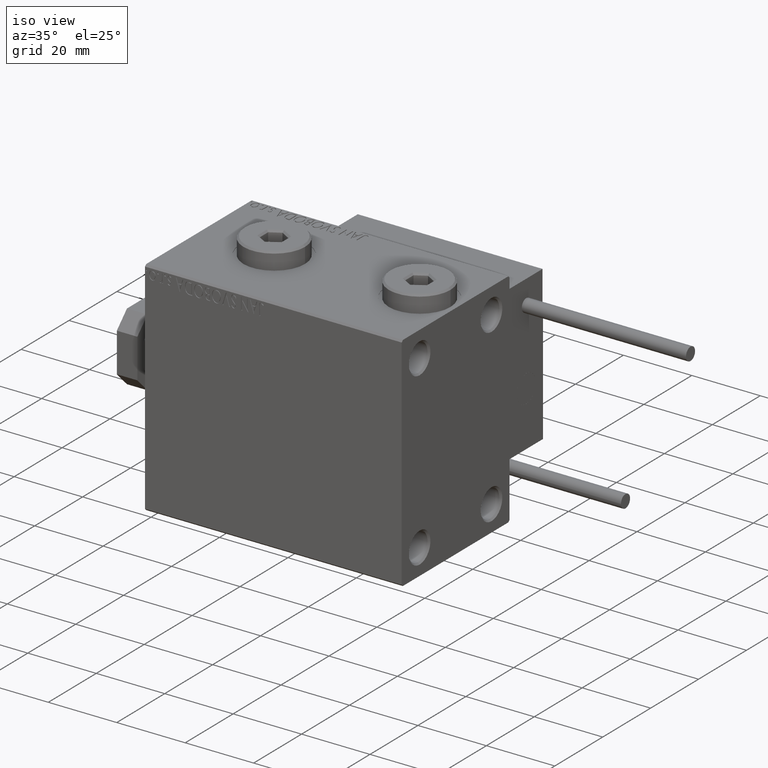
[diagram: clean part render]
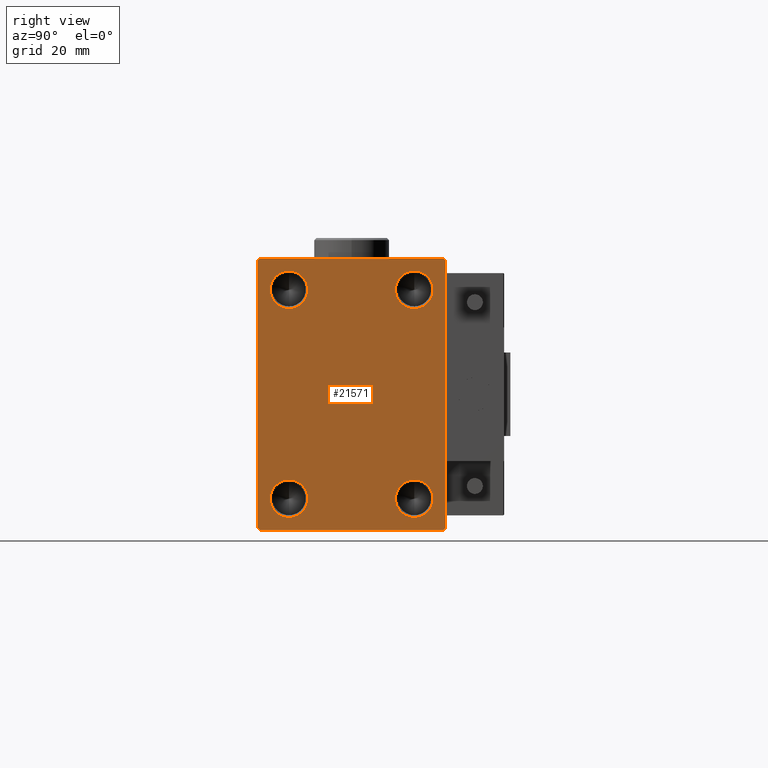
[diagram: tour spotlight — one face highlighted and labeled with its STEP entity id]
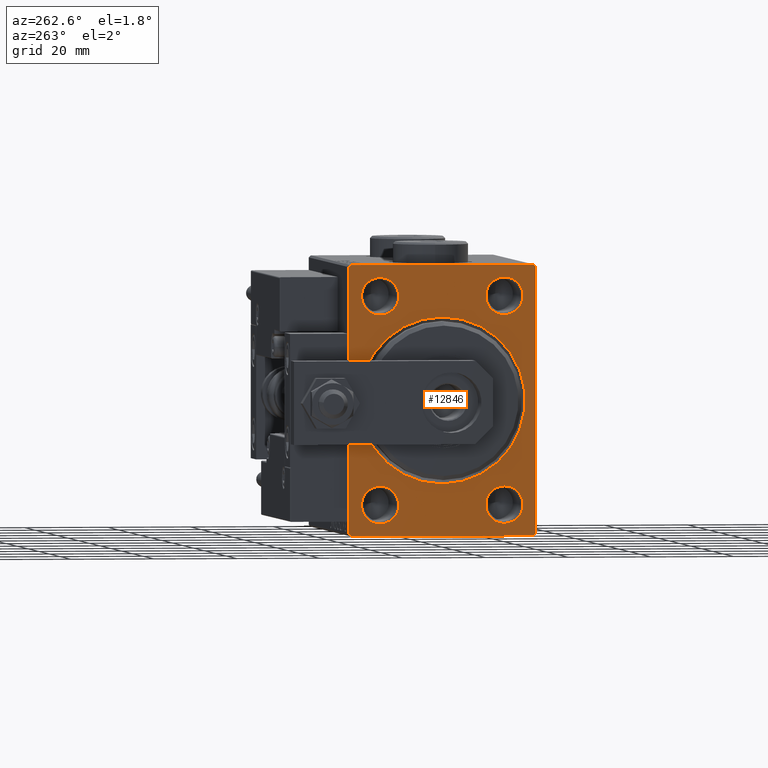
[diagram: tour spotlight — one face highlighted and labeled with its STEP entity id]
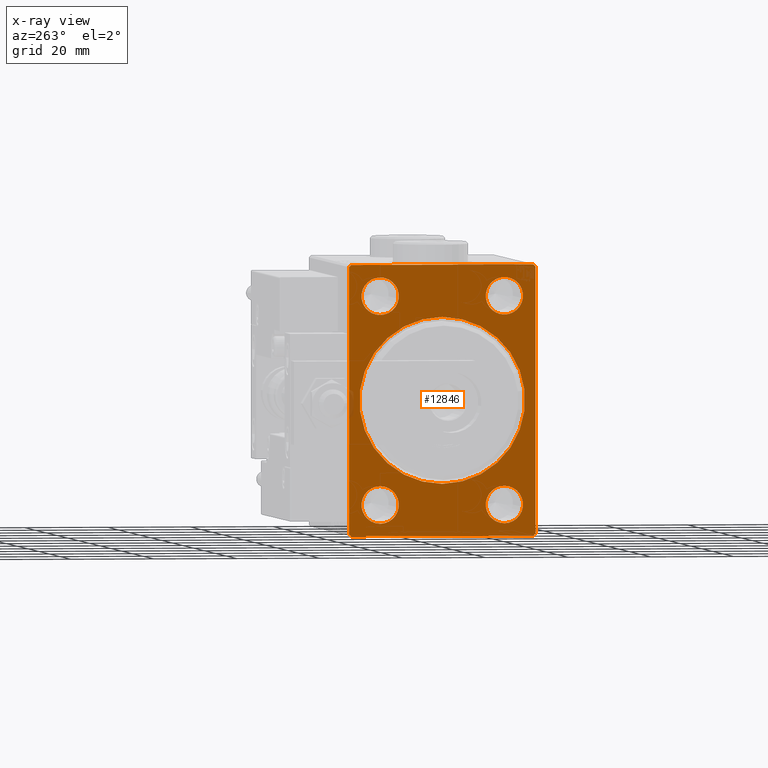
[diagram: x-ray of the same camera — body ghosted, this tour face saturated]
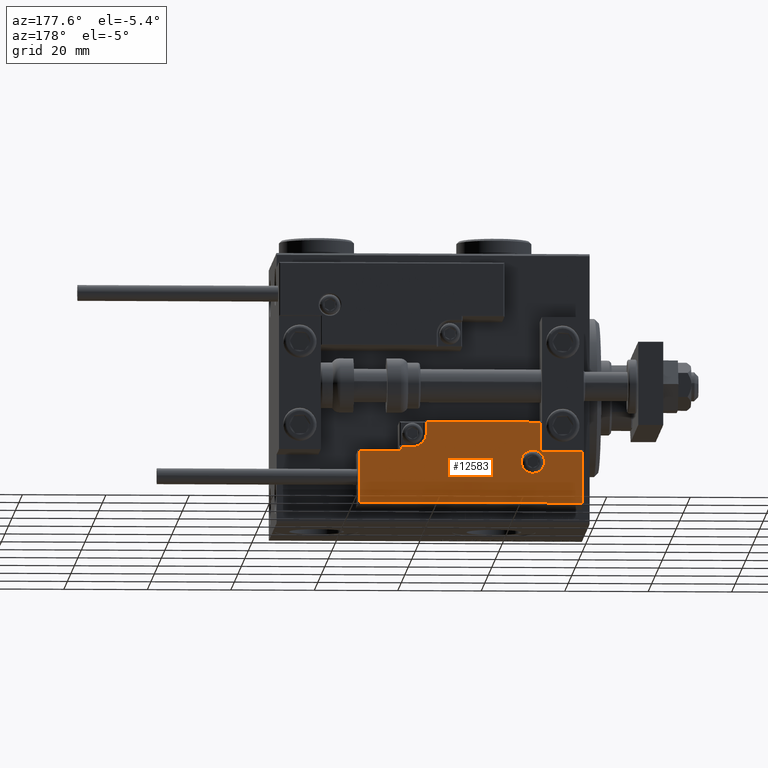
[diagram: tour spotlight — one face highlighted and labeled with its STEP entity id]
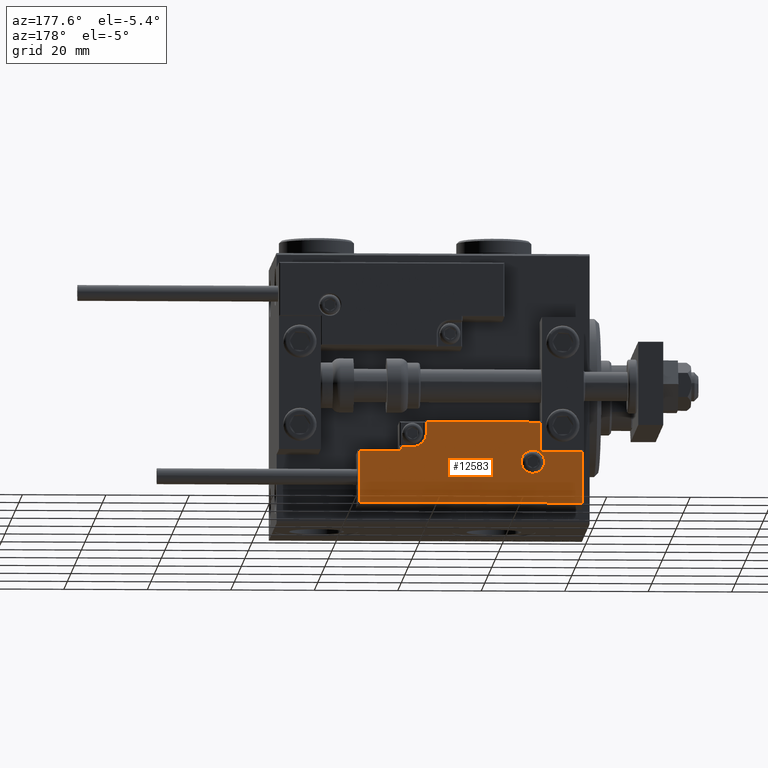
[diagram: tour spotlight — one face highlighted and labeled with its STEP entity id]
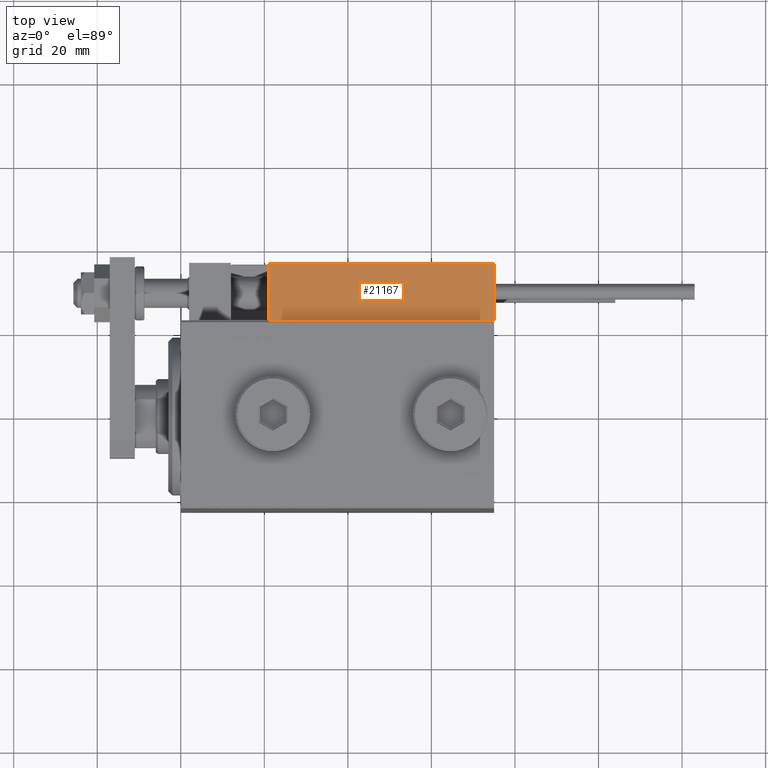
[diagram: tour spotlight — one face highlighted and labeled with its STEP entity id]
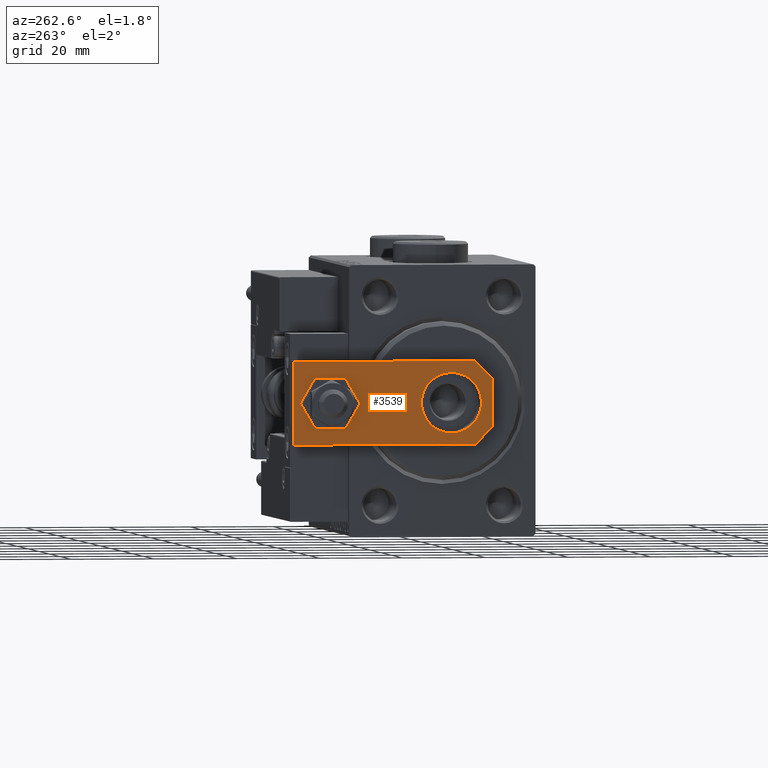
[diagram: tour spotlight — one face highlighted and labeled with its STEP entity id]
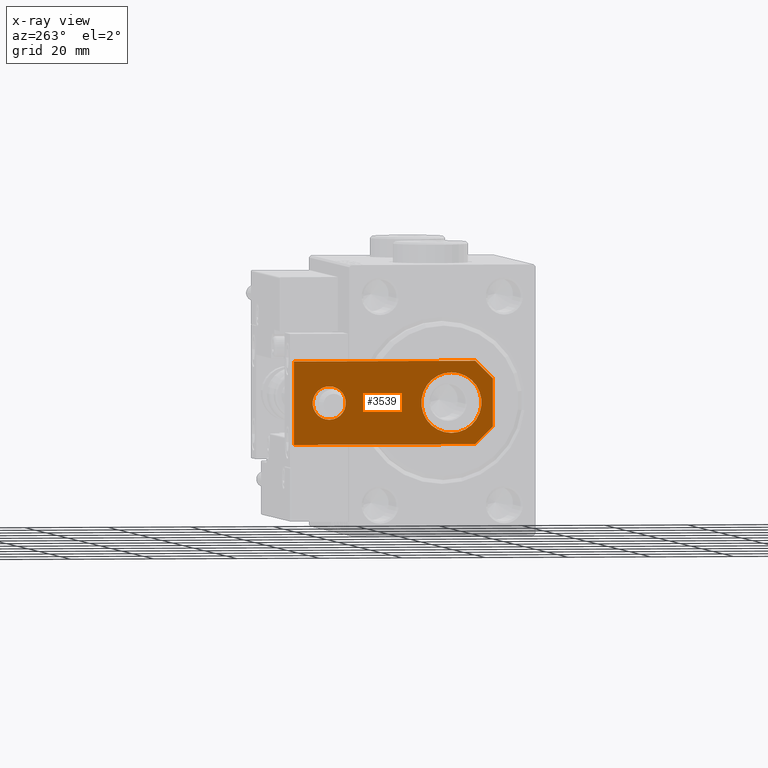
[diagram: x-ray of the same camera — body ghosted, this tour face saturated]
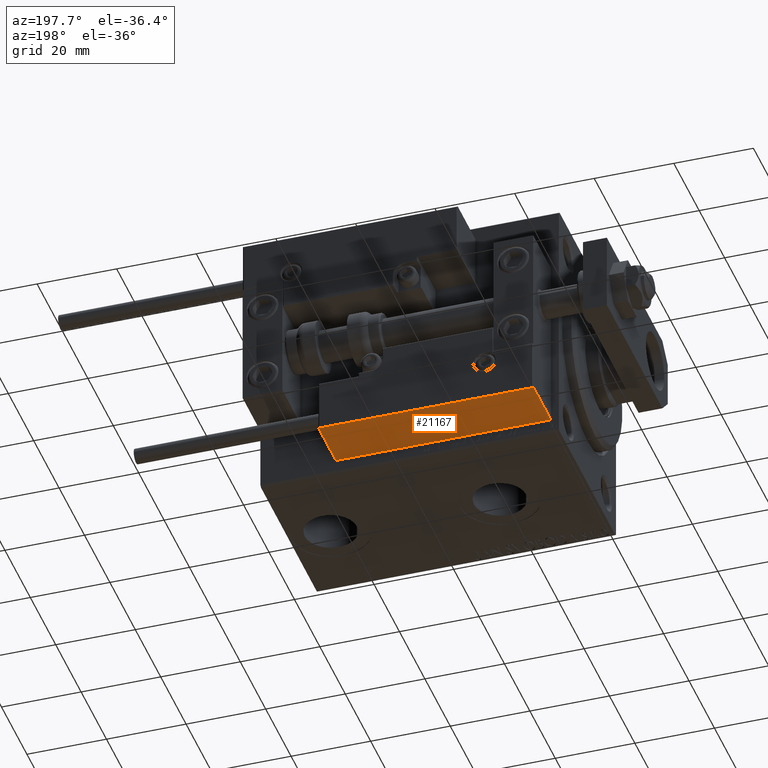
[diagram: tour spotlight — one face highlighted and labeled with its STEP entity id]
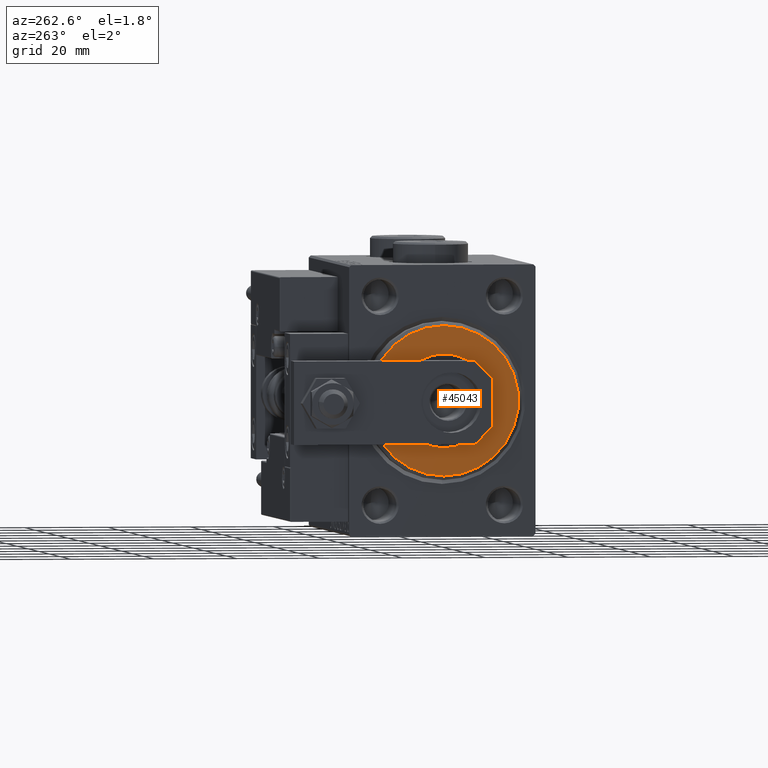
[diagram: tour spotlight — one face highlighted and labeled with its STEP entity id]
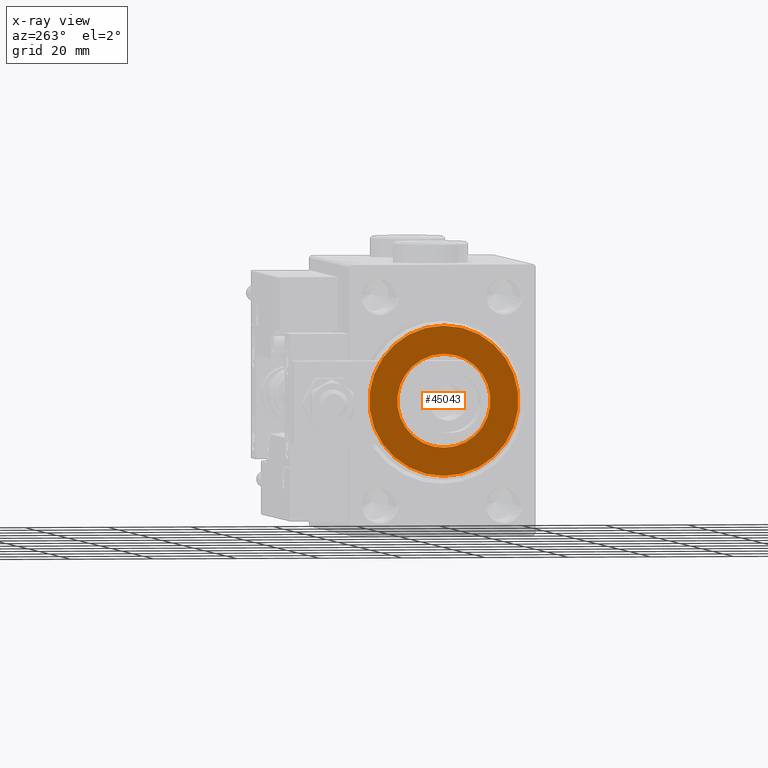
[diagram: x-ray of the same camera — body ghosted, this tour face saturated]
A machine part: a face-by-face anatomy tour. The part has 1372 B-rep faces; the first image is the clean iso view, then the 8 largest visible faces are spotlighted one at a time (largest first), each with its STEP entity span.

Face 1 — right view, entity #21571. In plain terms, the highlighted planar face has unit normal (1, 0, 0).
Definition (entity closure, byte-faithful):
#235 = DIRECTION ( 'NONE',  ( 0.000000000000000000, 0.000000000000000000, -1.000000000000000000 ) ) ;
#591 = CIRCLE ( 'NONE', #38806, 4.500000000000017764 ) ;
#948 = ORIENTED_EDGE ( 'NONE', *, *, #42275, .F. ) ;
#980 = VECTOR ( 'NONE', #40868, 1000.000000000000000 ) ;
#1086 = CIRCLE ( 'NONE', #41021, 4.500000000000017764 ) ;
#1194 = VECTOR ( 'NONE', #52576, 1000.000000000000114 ) ;
#1711 = EDGE_CURVE ( 'NONE', #22829, #30299, #32560, .T. ) ;
#1749 = DIRECTION ( 'NONE',  ( 0.000000000000000000, 0.000000000000000000, -1.000000000000000000 ) ) ;
#2175 = DIRECTION ( 'NONE',  ( 0.000000000000000000, 0.000000000000000000, -1.000000000000000000 ) ) ;
#2301 = CARTESIAN_POINT ( 'NONE',  ( 75.00000000000000000, 15.00000000000000178, 20.49999999999998579 ) ) ;
#2505 = CARTESIAN_POINT ( 'NONE',  ( 75.00000000000000000, 15.00000000000000178, -20.49999999999998579 ) ) ;
#4258 = EDGE_CURVE ( 'NONE', #39478, #29969, #32644, .T. ) ;
#4396 = AXIS2_PLACEMENT_3D ( 'NONE', #9980, #50662, #1749 ) ;
#5340 = LINE ( 'NONE', #20512, #52343 ) ;
#5614 = LINE ( 'NONE', #21838, #31277 ) ;
#5934 = EDGE_CURVE ( 'NONE', #45611, #10825, #29326, .T. ) ;
#6321 = CARTESIAN_POINT ( 'NONE',  ( 75.00000000000000000, 0.000000000000000000, 0.000000000000000000 ) ) ;
#6396 = VERTEX_POINT ( 'NONE', #31877 ) ;
#6636 = CARTESIAN_POINT ( 'NONE',  ( 75.00000000000000000, -27.25000000000015632, -27.24999999999977973 ) ) ;
#6673 = CARTESIAN_POINT ( 'NONE',  ( 75.00000000000000000, 15.00000000000000178, -25.00000000000000000 ) ) ;
#7105 = DIRECTION ( 'NONE',  ( 1.000000000000000000, 0.000000000000000000, 0.000000000000000000 ) ) ;
#7155 = ORIENTED_EDGE ( 'NONE', *, *, #27210, .T. ) ;
#7164 = EDGE_LOOP ( 'NONE', ( #7155, #51353, #17858, #47097, #19635, #36960, #49204, #32791 ) ) ;
#7833 = AXIS2_PLACEMENT_3D ( 'NONE', #10870, #26584, #51297 ) ;
#8231 = AXIS2_PLACEMENT_3D ( 'NONE', #6321, #7105, #51517 ) ;
#9609 = AXIS2_PLACEMENT_3D ( 'NONE', #28692, #16431, #235 ) ;
#9732 = DIRECTION ( 'NONE',  ( -0.000000000000000000, 0.7071067811865378028, 0.7071067811865573427 ) ) ;
#9777 = FACE_BOUND ( 'NONE', #49980, .T. ) ;
#9980 = CARTESIAN_POINT ( 'NONE',  ( 75.00000000000000000, -15.00000000000000000, -25.00000000000000000 ) ) ;
#10825 = VERTEX_POINT ( 'NONE', #39712 ) ;
#10870 = CARTESIAN_POINT ( 'NONE',  ( 75.00000000000000000, 15.00000000000000178, 25.00000000000000000 ) ) ;
#11027 = CARTESIAN_POINT ( 'NONE',  ( 75.00000000000000000, -22.49999999999999289, 32.49999999999998579 ) ) ;
#12657 = LINE ( 'NONE', #49110, #980 ) ;
#14019 = FACE_OUTER_BOUND ( 'NONE', #7164, .T. ) ;
#14135 = CARTESIAN_POINT ( 'NONE',  ( 75.00000000000000000, -15.00000000000000000, 25.00000000000000000 ) ) ;
#14439 = CARTESIAN_POINT ( 'NONE',  ( 75.00000000000000000, -22.49999999999999289, 31.99999999999998579 ) ) ;
#14631 = EDGE_CURVE ( 'NONE', #26017, #6396, #39368, .T. ) ;
#16431 = DIRECTION ( 'NONE',  ( 1.000000000000000000, -0.000000000000000000, -0.000000000000000000 ) ) ;
#17416 = VERTEX_POINT ( 'NONE', #48265 ) ;
#17858 = ORIENTED_EDGE ( 'NONE', *, *, #34758, .T. ) ;
#18568 = CARTESIAN_POINT ( 'NONE',  ( 75.00000000000000000, -22.49999999999999289, -32.50000000000000711 ) ) ;
#19280 = VECTOR ( 'NONE', #9732, 1000.000000000000000 ) ;
#19635 = ORIENTED_EDGE ( 'NONE', *, *, #25814, .T. ) ;
#20512 = CARTESIAN_POINT ( 'NONE',  ( 75.00000000000000000, 22.50000000000000711, -32.50000000000000711 ) ) ;
#20517 = DIRECTION ( 'NONE',  ( 0.000000000000000000, 0.000000000000000000, -1.000000000000000000 ) ) ;
#20783 = DIRECTION ( 'NONE',  ( 1.000000000000000000, -0.000000000000000000, -0.000000000000000000 ) ) ;
#20832 = VERTEX_POINT ( 'NONE', #31439 ) ;
#21203 = AXIS2_PLACEMENT_3D ( 'NONE', #14135, #30379, #46582 ) ;
#21571 = ADVANCED_FACE ( 'NONE', ( #9777, #30522, #22018, #34252, #14019 ), #42745, .T. ) ;
#21838 = CARTESIAN_POINT ( 'NONE',  ( 75.00000000000000000, 22.50000000000000000, 32.49999999999999289 ) ) ;
#21861 = EDGE_LOOP ( 'NONE', ( #35383, #48545 ) ) ;
#21894 = DIRECTION ( 'NONE',  ( 0.000000000000000000, 0.000000000000000000, -1.000000000000000000 ) ) ;
#22018 = FACE_BOUND ( 'NONE', #51833, .T. ) ;
#22118 = VECTOR ( 'NONE', #22337, 1000.000000000000000 ) ;
#22337 = DIRECTION ( 'NONE',  ( -0.000000000000000000, 0.7071067811865426878, -0.7071067811865524577 ) ) ;
#22639 = DIRECTION ( 'NONE',  ( 1.000000000000000000, -0.000000000000000000, -0.000000000000000000 ) ) ;
#22829 = VERTEX_POINT ( 'NONE', #42911 ) ;
#24520 = CARTESIAN_POINT ( 'NONE',  ( 75.00000000000000000, -15.00000000000000000, -25.00000000000000000 ) ) ;
#24761 = VERTEX_POINT ( 'NONE', #36695 ) ;
#24839 = CARTESIAN_POINT ( 'NONE',  ( 75.00000000000000000, 15.00000000000000178, -25.00000000000000000 ) ) ;
#24845 = EDGE_CURVE ( 'NONE', #51808, #26543, #25698, .T. ) ;
#25071 = AXIS2_PLACEMENT_3D ( 'NONE', #6673, #22639, #2175 ) ;
#25334 = CARTESIAN_POINT ( 'NONE',  ( 75.00000000000000000, -15.00000000000000000, 20.50000000000001776 ) ) ;
#25496 = CARTESIAN_POINT ( 'NONE',  ( 75.00000000000000000, -22.00000000000000711, -32.50000000000000711 ) ) ;
#25698 = LINE ( 'NONE', #41925, #19280 ) ;
#25814 = EDGE_CURVE ( 'NONE', #27689, #51808, #42770, .T. ) ;
#25929 = VERTEX_POINT ( 'NONE', #2301 ) ;
#26017 = VERTEX_POINT ( 'NONE', #43242 ) ;
#26524 = CIRCLE ( 'NONE', #7833, 4.500000000000017764 ) ;
#26543 = VERTEX_POINT ( 'NONE', #47820 ) ;
#26584 = DIRECTION ( 'NONE',  ( 1.000000000000000000, -0.000000000000000000, -0.000000000000000000 ) ) ;
#27210 = EDGE_CURVE ( 'NONE', #35203, #39478, #5614, .T. ) ;
#27689 = VERTEX_POINT ( 'NONE', #25496 ) ;
#27841 = DIRECTION ( 'NONE',  ( 0.000000000000000000, 0.000000000000000000, -1.000000000000000000 ) ) ;
#28692 = CARTESIAN_POINT ( 'NONE',  ( 75.00000000000000000, -15.00000000000000000, 25.00000000000000000 ) ) ;
#28754 = ORIENTED_EDGE ( 'NONE', *, *, #1711, .F. ) ;
#29326 = CIRCLE ( 'NONE', #25071, 4.500000000000017764 ) ;
#29487 = VECTOR ( 'NONE', #34800, 1000.000000000000000 ) ;
#29825 = VECTOR ( 'NONE', #43487, 1000.000000000000000 ) ;
#29969 = VERTEX_POINT ( 'NONE', #14439 ) ;
#30299 = VERTEX_POINT ( 'NONE', #25334 ) ;
#30379 = DIRECTION ( 'NONE',  ( 1.000000000000000000, -0.000000000000000000, -0.000000000000000000 ) ) ;
#30522 = FACE_BOUND ( 'NONE', #36201, .T. ) ;
#30915 = CARTESIAN_POINT ( 'NONE',  ( 75.00000000000000000, 22.00000000000000711, -32.50000000000000711 ) ) ;
#31148 = EDGE_CURVE ( 'NONE', #30299, #22829, #37345, .T. ) ;
#31277 = VECTOR ( 'NONE', #34068, 1000.000000000000000 ) ;
#31439 = CARTESIAN_POINT ( 'NONE',  ( 75.00000000000000000, 22.50000000000000000, 32.00000000000000711 ) ) ;
#31877 = CARTESIAN_POINT ( 'NONE',  ( 75.00000000000000000, -15.00000000000000000, -29.49999999999998579 ) ) ;
#32560 = CIRCLE ( 'NONE', #9609, 4.499999999999990230 ) ;
#32644 = LINE ( 'NONE', #36376, #1194 ) ;
#32791 = ORIENTED_EDGE ( 'NONE', *, *, #34625, .T. ) ;
#34068 = DIRECTION ( 'NONE',  ( 0.000000000000000000, -1.000000000000000000, -1.541976423090495633E-16 ) ) ;
#34116 = CIRCLE ( 'NONE', #4396, 4.499999999999990230 ) ;
#34252 = FACE_BOUND ( 'NONE', #21861, .T. ) ;
#34572 = LINE ( 'NONE', #6636, #22118 ) ;
#34625 = EDGE_CURVE ( 'NONE', #20832, #35203, #12657, .T. ) ;
#34758 = EDGE_CURVE ( 'NONE', #29969, #17416, #47468, .T. ) ;
#34800 = DIRECTION ( 'NONE',  ( 0.000000000000000000, 1.000000000000000000, 0.000000000000000000 ) ) ;
#34805 = CARTESIAN_POINT ( 'NONE',  ( 75.00000000000000000, -21.99999999999997868, 32.49999999999998579 ) ) ;
#34903 = ORIENTED_EDGE ( 'NONE', *, *, #14631, .F. ) ;
#35203 = VERTEX_POINT ( 'NONE', #45741 ) ;
#35383 = ORIENTED_EDGE ( 'NONE', *, *, #5934, .F. ) ;
#35784 = EDGE_CURVE ( 'NONE', #6396, #26017, #34116, .T. ) ;
#35825 = DIRECTION ( 'NONE',  ( 1.000000000000000000, -0.000000000000000000, -0.000000000000000000 ) ) ;
#36201 = EDGE_LOOP ( 'NONE', ( #28754, #43398 ) ) ;
#36376 = CARTESIAN_POINT ( 'NONE',  ( 75.00000000000000000, -27.24999999999998934, 27.24999999999998934 ) ) ;
#36695 = CARTESIAN_POINT ( 'NONE',  ( 75.00000000000000000, 15.00000000000000178, 29.50000000000001421 ) ) ;
#36960 = ORIENTED_EDGE ( 'NONE', *, *, #24845, .T. ) ;
#37345 = CIRCLE ( 'NONE', #21203, 4.499999999999990230 ) ;
#38806 = AXIS2_PLACEMENT_3D ( 'NONE', #24839, #41578, #21894 ) ;
#39368 = CIRCLE ( 'NONE', #47017, 4.499999999999990230 ) ;
#39478 = VERTEX_POINT ( 'NONE', #34805 ) ;
#39712 = CARTESIAN_POINT ( 'NONE',  ( 75.00000000000000000, 15.00000000000000178, -29.50000000000001421 ) ) ;
#40521 = ORIENTED_EDGE ( 'NONE', *, *, #35784, .F. ) ;
#40868 = DIRECTION ( 'NONE',  ( -0.000000000000000000, -0.7071067811865573427, 0.7071067811865378028 ) ) ;
#41021 = AXIS2_PLACEMENT_3D ( 'NONE', #44057, #35825, #27841 ) ;
#41257 = DIRECTION ( 'NONE',  ( 0.000000000000000000, -1.067522139062650425E-16, 1.000000000000000000 ) ) ;
#41578 = DIRECTION ( 'NONE',  ( 1.000000000000000000, -0.000000000000000000, -0.000000000000000000 ) ) ;
#41794 = EDGE_CURVE ( 'NONE', #25929, #24761, #26524, .T. ) ;
#41925 = CARTESIAN_POINT ( 'NONE',  ( 75.00000000000000000, 27.25000000000032330, -27.24999999999957012 ) ) ;
#42275 = EDGE_CURVE ( 'NONE', #24761, #25929, #1086, .T. ) ;
#42286 = ORIENTED_EDGE ( 'NONE', *, *, #41794, .F. ) ;
#42745 = PLANE ( 'NONE',  #8231 ) ;
#42770 = LINE ( 'NONE', #18568, #29487 ) ;
#42911 = CARTESIAN_POINT ( 'NONE',  ( 75.00000000000000000, -15.00000000000000000, 29.49999999999998579 ) ) ;
#43242 = CARTESIAN_POINT ( 'NONE',  ( 75.00000000000000000, -15.00000000000000000, -20.50000000000001776 ) ) ;
#43398 = ORIENTED_EDGE ( 'NONE', *, *, #31148, .F. ) ;
#43487 = DIRECTION ( 'NONE',  ( 0.000000000000000000, 0.000000000000000000, -1.000000000000000000 ) ) ;
#44057 = CARTESIAN_POINT ( 'NONE',  ( 75.00000000000000000, 15.00000000000000178, 25.00000000000000000 ) ) ;
#45611 = VERTEX_POINT ( 'NONE', #2505 ) ;
#45741 = CARTESIAN_POINT ( 'NONE',  ( 75.00000000000000000, 22.00000000000000000, 32.49999999999999289 ) ) ;
#46582 = DIRECTION ( 'NONE',  ( 0.000000000000000000, 0.000000000000000000, -1.000000000000000000 ) ) ;
#47017 = AXIS2_PLACEMENT_3D ( 'NONE', #24520, #20783, #20517 ) ;
#47097 = ORIENTED_EDGE ( 'NONE', *, *, #51198, .T. ) ;
#47468 = LINE ( 'NONE', #11027, #29825 ) ;
#47820 = CARTESIAN_POINT ( 'NONE',  ( 75.00000000000000000, 22.50000000000000711, -32.00000000000000711 ) ) ;
#48265 = CARTESIAN_POINT ( 'NONE',  ( 75.00000000000000000, -22.49999999999999289, -32.00000000000001421 ) ) ;
#48545 = ORIENTED_EDGE ( 'NONE', *, *, #51706, .F. ) ;
#49110 = CARTESIAN_POINT ( 'NONE',  ( 75.00000000000000000, 27.24999999999969447, 27.25000000000044764 ) ) ;
#49204 = ORIENTED_EDGE ( 'NONE', *, *, #52060, .T. ) ;
#49980 = EDGE_LOOP ( 'NONE', ( #948, #42286 ) ) ;
#50662 = DIRECTION ( 'NONE',  ( 1.000000000000000000, -0.000000000000000000, -0.000000000000000000 ) ) ;
#51198 = EDGE_CURVE ( 'NONE', #17416, #27689, #34572, .T. ) ;
#51297 = DIRECTION ( 'NONE',  ( 0.000000000000000000, 0.000000000000000000, -1.000000000000000000 ) ) ;
#51353 = ORIENTED_EDGE ( 'NONE', *, *, #4258, .T. ) ;
#51517 = DIRECTION ( 'NONE',  ( 0.000000000000000000, 0.000000000000000000, -1.000000000000000000 ) ) ;
#51706 = EDGE_CURVE ( 'NONE', #10825, #45611, #591, .T. ) ;
#51808 = VERTEX_POINT ( 'NONE', #30915 ) ;
#51833 = EDGE_LOOP ( 'NONE', ( #34903, #40521 ) ) ;
#52060 = EDGE_CURVE ( 'NONE', #26543, #20832, #5340, .T. ) ;
#52343 = VECTOR ( 'NONE', #41257, 1000.000000000000000 ) ;
#52576 = DIRECTION ( 'NONE',  ( 0.000000000000000000, -0.7071067811865474617, -0.7071067811865474617 ) ) ;

Face 2 — auxiliary view, entity #12846. An x-ray twin of the same camera follows (body ghosted, this face saturated) — the face is partly hidden behind the body. In plain terms, the highlighted planar face has unit normal (1, 0, 0).
Definition (entity closure, byte-faithful):
#668 = CARTESIAN_POINT ( 'NONE',  ( 0.000000000000000000, -15.00000000000000000, -29.49999999999999289 ) ) ;
#677 = LINE ( 'NONE', #29119, #1167 ) ;
#877 = EDGE_LOOP ( 'NONE', ( #14330, #27704 ) ) ;
#1146 = AXIS2_PLACEMENT_3D ( 'NONE', #3383, #16371, #15585 ) ;
#1167 = VECTOR ( 'NONE', #40048, 1000.000000000000000 ) ;
#2180 = EDGE_LOOP ( 'NONE', ( #13619, #41774, #49225, #33009, #51783, #27118, #30497, #19415 ) ) ;
#2202 = LINE ( 'NONE', #46074, #41916 ) ;
#2323 = EDGE_CURVE ( 'NONE', #48153, #46664, #33662, .T. ) ;
#2812 = VECTOR ( 'NONE', #12088, 1000.000000000000000 ) ;
#2844 = CARTESIAN_POINT ( 'NONE',  ( 0.000000000000000000, 15.00000000000000178, 25.00000000000000000 ) ) ;
#2926 = DIRECTION ( 'NONE',  ( 1.000000000000000000, 0.000000000000000000, 0.000000000000000000 ) ) ;
#3383 = CARTESIAN_POINT ( 'NONE',  ( 0.000000000000000000, 0.000000000000000000, 0.000000000000000000 ) ) ;
#3643 = CARTESIAN_POINT ( 'NONE',  ( 0.000000000000000000, -15.00000000000000000, -20.50000000000001066 ) ) ;
#3950 = ORIENTED_EDGE ( 'NONE', *, *, #19888, .T. ) ;
#4194 = CARTESIAN_POINT ( 'NONE',  ( 0.000000000000000000, 15.00000000000000178, -20.49999999999998224 ) ) ;
#4485 = VERTEX_POINT ( 'NONE', #668 ) ;
#4708 = ORIENTED_EDGE ( 'NONE', *, *, #47478, .T. ) ;
#4722 = CIRCLE ( 'NONE', #14035, 19.99999999999998934 ) ;
#4780 = CIRCLE ( 'NONE', #18355, 4.499999999999990230 ) ;
#5086 = CARTESIAN_POINT ( 'NONE',  ( 0.000000000000000000, 2.449293598294705330E-15, -19.99999999999998934 ) ) ;
#5485 = CIRCLE ( 'NONE', #25041, 4.499999999999990230 ) ;
#5688 = VECTOR ( 'NONE', #47790, 1000.000000000000000 ) ;
#6061 = ORIENTED_EDGE ( 'NONE', *, *, #40155, .T. ) ;
#6162 = ORIENTED_EDGE ( 'NONE', *, *, #33015, .T. ) ;
#6850 = CIRCLE ( 'NONE', #34035, 4.499999999999990230 ) ;
#7473 = LINE ( 'NONE', #31688, #45580 ) ;
#7859 = DIRECTION ( 'NONE',  ( 0.000000000000000000, 0.000000000000000000, -1.000000000000000000 ) ) ;
#8132 = CARTESIAN_POINT ( 'NONE',  ( 0.000000000000000000, -15.00000000000000000, 25.00000000000000000 ) ) ;
#8556 = CARTESIAN_POINT ( 'NONE',  ( 0.000000000000000000, 0.000000000000000000, 0.000000000000000000 ) ) ;
#9639 = EDGE_CURVE ( 'NONE', #10331, #35489, #4722, .T. ) ;
#10331 = VERTEX_POINT ( 'NONE', #30473 ) ;
#10481 = DIRECTION ( 'NONE',  ( 0.000000000000000000, -0.7071067811865378028, -0.7071067811865573427 ) ) ;
#11086 = CARTESIAN_POINT ( 'NONE',  ( 0.000000000000000000, -22.49999999999999289, 32.49999999999998579 ) ) ;
#11190 = DIRECTION ( 'NONE',  ( -0.000000000000000000, 0.7071067811865474617, 0.7071067811865474617 ) ) ;
#11462 = DIRECTION ( 'NONE',  ( 0.000000000000000000, 0.000000000000000000, -1.000000000000000000 ) ) ;
#11669 = CIRCLE ( 'NONE', #46481, 4.500000000000017764 ) ;
#12088 = DIRECTION ( 'NONE',  ( -0.000000000000000000, 0.7071067811865573427, -0.7071067811865378028 ) ) ;
#12379 = FACE_BOUND ( 'NONE', #21814, .T. ) ;
#12508 = EDGE_LOOP ( 'NONE', ( #3950, #4708 ) ) ;
#12644 = EDGE_CURVE ( 'NONE', #43861, #22046, #16618, .T. ) ;
#12831 = VERTEX_POINT ( 'NONE', #3643 ) ;
#12846 = ADVANCED_FACE ( 'NONE', ( #23324, #35826, #27842, #12379, #31573, #15851 ), #27585, .F. ) ;
#12929 = CARTESIAN_POINT ( 'NONE',  ( 0.000000000000000000, -15.00000000000000000, 29.49999999999999289 ) ) ;
#13137 = CARTESIAN_POINT ( 'NONE',  ( 0.000000000000000000, -21.99999999999997868, 32.49999999999998579 ) ) ;
#13248 = EDGE_LOOP ( 'NONE', ( #30095, #6061 ) ) ;
#13328 = EDGE_CURVE ( 'NONE', #48153, #22046, #2202, .T. ) ;
#13619 = ORIENTED_EDGE ( 'NONE', *, *, #21614, .F. ) ;
#13826 = CARTESIAN_POINT ( 'NONE',  ( 0.000000000000000000, 22.00000000000000000, 32.49999999999999289 ) ) ;
#14035 = AXIS2_PLACEMENT_3D ( 'NONE', #8556, #36234, #52434 ) ;
#14330 = ORIENTED_EDGE ( 'NONE', *, *, #17401, .T. ) ;
#14509 = VERTEX_POINT ( 'NONE', #27203 ) ;
#15585 = DIRECTION ( 'NONE',  ( 0.000000000000000000, 0.000000000000000000, -1.000000000000000000 ) ) ;
#15610 = VERTEX_POINT ( 'NONE', #41788 ) ;
#15662 = ORIENTED_EDGE ( 'NONE', *, *, #46086, .T. ) ;
#15840 = DIRECTION ( 'NONE',  ( 1.000000000000000000, 0.000000000000000000, 0.000000000000000000 ) ) ;
#15851 = FACE_OUTER_BOUND ( 'NONE', #2180, .T. ) ;
#16023 = CARTESIAN_POINT ( 'NONE',  ( 0.000000000000000000, 0.000000000000000000, 0.000000000000000000 ) ) ;
#16371 = DIRECTION ( 'NONE',  ( 1.000000000000000000, 0.000000000000000000, 0.000000000000000000 ) ) ;
#16618 = LINE ( 'NONE', #36847, #2812 ) ;
#17401 = EDGE_CURVE ( 'NONE', #28612, #14509, #26765, .T. ) ;
#17514 = LINE ( 'NONE', #38526, #44028 ) ;
#18038 = CARTESIAN_POINT ( 'NONE',  ( 0.000000000000000000, 15.00000000000000178, 20.49999999999998224 ) ) ;
#18355 = AXIS2_PLACEMENT_3D ( 'NONE', #44434, #40191, #11462 ) ;
#18968 = DIRECTION ( 'NONE',  ( 1.000000000000000000, 0.000000000000000000, 0.000000000000000000 ) ) ;
#19415 = ORIENTED_EDGE ( 'NONE', *, *, #44708, .T. ) ;
#19888 = EDGE_CURVE ( 'NONE', #28710, #24124, #4780, .T. ) ;
#21327 = CARTESIAN_POINT ( 'NONE',  ( 0.000000000000000000, 22.50000000000000000, 32.00000000000000711 ) ) ;
#21556 = DIRECTION ( 'NONE',  ( 1.000000000000000000, 0.000000000000000000, 0.000000000000000000 ) ) ;
#21614 = EDGE_CURVE ( 'NONE', #49226, #22934, #51780, .T. ) ;
#21814 = EDGE_LOOP ( 'NONE', ( #15662, #39571 ) ) ;
#22046 = VERTEX_POINT ( 'NONE', #21327 ) ;
#22934 = VERTEX_POINT ( 'NONE', #31740 ) ;
#23324 = FACE_BOUND ( 'NONE', #13248, .T. ) ;
#23387 = EDGE_LOOP ( 'NONE', ( #6162, #34837 ) ) ;
#23837 = DIRECTION ( 'NONE',  ( 0.000000000000000000, 0.000000000000000000, -1.000000000000000000 ) ) ;
#24004 = EDGE_CURVE ( 'NONE', #49226, #39998, #7473, .T. ) ;
#24051 = VECTOR ( 'NONE', #10481, 1000.000000000000000 ) ;
#24124 = VERTEX_POINT ( 'NONE', #36991 ) ;
#25041 = AXIS2_PLACEMENT_3D ( 'NONE', #8132, #40843, #23837 ) ;
#25609 = DIRECTION ( 'NONE',  ( 0.000000000000000000, 0.000000000000000000, -1.000000000000000000 ) ) ;
#25758 = VERTEX_POINT ( 'NONE', #18038 ) ;
#26737 = EDGE_CURVE ( 'NONE', #25758, #40248, #11669, .T. ) ;
#26765 = CIRCLE ( 'NONE', #32727, 4.500000000000017764 ) ;
#26967 = DIRECTION ( 'NONE',  ( 0.000000000000000000, 0.000000000000000000, -1.000000000000000000 ) ) ;
#27118 = ORIENTED_EDGE ( 'NONE', *, *, #2323, .T. ) ;
#27203 = CARTESIAN_POINT ( 'NONE',  ( 0.000000000000000000, 15.00000000000000178, -29.50000000000001776 ) ) ;
#27298 = DIRECTION ( 'NONE',  ( 1.000000000000000000, 0.000000000000000000, 0.000000000000000000 ) ) ;
#27510 = CARTESIAN_POINT ( 'NONE',  ( 0.000000000000000000, 22.50000000000000000, 32.49999999999999289 ) ) ;
#27585 = PLANE ( 'NONE',  #1146 ) ;
#27704 = ORIENTED_EDGE ( 'NONE', *, *, #32304, .T. ) ;
#27842 = FACE_BOUND ( 'NONE', #12508, .T. ) ;
#28395 = EDGE_CURVE ( 'NONE', #15610, #46664, #17514, .T. ) ;
#28592 = DIRECTION ( 'NONE',  ( 0.000000000000000000, 0.000000000000000000, -1.000000000000000000 ) ) ;
#28612 = VERTEX_POINT ( 'NONE', #4194 ) ;
#28710 = VERTEX_POINT ( 'NONE', #12929 ) ;
#29119 = CARTESIAN_POINT ( 'NONE',  ( 0.000000000000000000, -22.00000000000000711, -32.50000000000000711 ) ) ;
#29893 = AXIS2_PLACEMENT_3D ( 'NONE', #16023, #18968, #26967 ) ;
#29929 = CARTESIAN_POINT ( 'NONE',  ( 0.000000000000000000, -22.49999999999999289, 31.99999999999998579 ) ) ;
#30095 = ORIENTED_EDGE ( 'NONE', *, *, #9639, .T. ) ;
#30119 = CARTESIAN_POINT ( 'NONE',  ( 0.000000000000000000, -15.00000000000000000, -25.00000000000000000 ) ) ;
#30450 = CARTESIAN_POINT ( 'NONE',  ( 0.000000000000000000, 22.50000000000000711, -32.00000000000000711 ) ) ;
#30473 = CARTESIAN_POINT ( 'NONE',  ( 0.000000000000000000, 0.000000000000000000, 19.99999999999998934 ) ) ;
#30497 = ORIENTED_EDGE ( 'NONE', *, *, #28395, .F. ) ;
#31175 = AXIS2_PLACEMENT_3D ( 'NONE', #32166, #2926, #52365 ) ;
#31534 = CARTESIAN_POINT ( 'NONE',  ( 0.000000000000000000, 15.00000000000000178, -25.00000000000000000 ) ) ;
#31573 = FACE_BOUND ( 'NONE', #877, .T. ) ;
#31688 = CARTESIAN_POINT ( 'NONE',  ( 0.000000000000000000, -22.49999999999999289, 31.99999999999998579 ) ) ;
#31740 = CARTESIAN_POINT ( 'NONE',  ( 0.000000000000000000, -22.49999999999999289, -32.00000000000001421 ) ) ;
#32166 = CARTESIAN_POINT ( 'NONE',  ( 0.000000000000000000, -15.00000000000000000, -25.00000000000000000 ) ) ;
#32298 = CIRCLE ( 'NONE', #46736, 4.500000000000017764 ) ;
#32304 = EDGE_CURVE ( 'NONE', #14509, #28612, #32298, .T. ) ;
#32727 = AXIS2_PLACEMENT_3D ( 'NONE', #31534, #40557, #28592 ) ;
#32795 = CARTESIAN_POINT ( 'NONE',  ( 0.000000000000000000, 15.00000000000000178, 29.50000000000001776 ) ) ;
#33009 = ORIENTED_EDGE ( 'NONE', *, *, #12644, .T. ) ;
#33015 = EDGE_CURVE ( 'NONE', #12831, #4485, #6850, .T. ) ;
#33662 = LINE ( 'NONE', #30450, #24051 ) ;
#34035 = AXIS2_PLACEMENT_3D ( 'NONE', #30119, #37585, #25609 ) ;
#34837 = ORIENTED_EDGE ( 'NONE', *, *, #52208, .T. ) ;
#35489 = VERTEX_POINT ( 'NONE', #5086 ) ;
#35826 = FACE_BOUND ( 'NONE', #23387, .T. ) ;
#36053 = AXIS2_PLACEMENT_3D ( 'NONE', #2844, #15840, #48037 ) ;
#36234 = DIRECTION ( 'NONE',  ( 1.000000000000000000, 0.000000000000000000, 0.000000000000000000 ) ) ;
#36699 = CIRCLE ( 'NONE', #29893, 19.99999999999998934 ) ;
#36847 = CARTESIAN_POINT ( 'NONE',  ( 0.000000000000000000, 22.00000000000000000, 32.49999999999999289 ) ) ;
#36991 = CARTESIAN_POINT ( 'NONE',  ( 0.000000000000000000, -15.00000000000000000, 20.50000000000001066 ) ) ;
#37585 = DIRECTION ( 'NONE',  ( 1.000000000000000000, 0.000000000000000000, 0.000000000000000000 ) ) ;
#37790 = DIRECTION ( 'NONE',  ( 0.000000000000000000, 0.000000000000000000, -1.000000000000000000 ) ) ;
#38526 = CARTESIAN_POINT ( 'NONE',  ( 0.000000000000000000, -22.49999999999999289, -32.50000000000000711 ) ) ;
#39571 = ORIENTED_EDGE ( 'NONE', *, *, #26737, .T. ) ;
#39742 = LINE ( 'NONE', #27510, #42503 ) ;
#39998 = VERTEX_POINT ( 'NONE', #13137 ) ;
#40048 = DIRECTION ( 'NONE',  ( -0.000000000000000000, -0.7071067811865426878, 0.7071067811865524577 ) ) ;
#40155 = EDGE_CURVE ( 'NONE', #35489, #10331, #36699, .T. ) ;
#40191 = DIRECTION ( 'NONE',  ( 1.000000000000000000, 0.000000000000000000, 0.000000000000000000 ) ) ;
#40248 = VERTEX_POINT ( 'NONE', #32795 ) ;
#40557 = DIRECTION ( 'NONE',  ( 1.000000000000000000, 0.000000000000000000, 0.000000000000000000 ) ) ;
#40843 = DIRECTION ( 'NONE',  ( 1.000000000000000000, 0.000000000000000000, 0.000000000000000000 ) ) ;
#41774 = ORIENTED_EDGE ( 'NONE', *, *, #24004, .T. ) ;
#41788 = CARTESIAN_POINT ( 'NONE',  ( 0.000000000000000000, -22.00000000000000711, -32.50000000000000711 ) ) ;
#41916 = VECTOR ( 'NONE', #51111, 1000.000000000000000 ) ;
#42503 = VECTOR ( 'NONE', #43727, 1000.000000000000000 ) ;
#42810 = CARTESIAN_POINT ( 'NONE',  ( 0.000000000000000000, 15.00000000000000178, -25.00000000000000000 ) ) ;
#43727 = DIRECTION ( 'NONE',  ( 0.000000000000000000, -1.000000000000000000, -1.541976423090495633E-16 ) ) ;
#43861 = VERTEX_POINT ( 'NONE', #13826 ) ;
#44028 = VECTOR ( 'NONE', #46225, 1000.000000000000000 ) ;
#44038 = CARTESIAN_POINT ( 'NONE',  ( 0.000000000000000000, 15.00000000000000178, 25.00000000000000000 ) ) ;
#44434 = CARTESIAN_POINT ( 'NONE',  ( 0.000000000000000000, -15.00000000000000000, 25.00000000000000000 ) ) ;
#44507 = CIRCLE ( 'NONE', #36053, 4.500000000000017764 ) ;
#44708 = EDGE_CURVE ( 'NONE', #15610, #22934, #677, .T. ) ;
#45580 = VECTOR ( 'NONE', #11190, 1000.000000000000114 ) ;
#45683 = CARTESIAN_POINT ( 'NONE',  ( 0.000000000000000000, 22.50000000000000711, -32.00000000000000711 ) ) ;
#46074 = CARTESIAN_POINT ( 'NONE',  ( 0.000000000000000000, 22.50000000000000711, -32.50000000000000711 ) ) ;
#46086 = EDGE_CURVE ( 'NONE', #40248, #25758, #44507, .T. ) ;
#46225 = DIRECTION ( 'NONE',  ( 0.000000000000000000, 1.000000000000000000, 0.000000000000000000 ) ) ;
#46332 = CARTESIAN_POINT ( 'NONE',  ( 0.000000000000000000, 22.00000000000000711, -32.50000000000000711 ) ) ;
#46481 = AXIS2_PLACEMENT_3D ( 'NONE', #44038, #27298, #7859 ) ;
#46664 = VERTEX_POINT ( 'NONE', #46332 ) ;
#46736 = AXIS2_PLACEMENT_3D ( 'NONE', #42810, #21556, #37790 ) ;
#47478 = EDGE_CURVE ( 'NONE', #24124, #28710, #5485, .T. ) ;
#47790 = DIRECTION ( 'NONE',  ( 0.000000000000000000, 0.000000000000000000, -1.000000000000000000 ) ) ;
#48037 = DIRECTION ( 'NONE',  ( 0.000000000000000000, 0.000000000000000000, -1.000000000000000000 ) ) ;
#48153 = VERTEX_POINT ( 'NONE', #45683 ) ;
#49225 = ORIENTED_EDGE ( 'NONE', *, *, #50605, .F. ) ;
#49226 = VERTEX_POINT ( 'NONE', #29929 ) ;
#50605 = EDGE_CURVE ( 'NONE', #43861, #39998, #39742, .T. ) ;
#51111 = DIRECTION ( 'NONE',  ( 0.000000000000000000, -1.067522139062650425E-16, 1.000000000000000000 ) ) ;
#51548 = CIRCLE ( 'NONE', #31175, 4.499999999999990230 ) ;
#51780 = LINE ( 'NONE', #11086, #5688 ) ;
#51783 = ORIENTED_EDGE ( 'NONE', *, *, #13328, .F. ) ;
#52208 = EDGE_CURVE ( 'NONE', #4485, #12831, #51548, .T. ) ;
#52365 = DIRECTION ( 'NONE',  ( 0.000000000000000000, 0.000000000000000000, -1.000000000000000000 ) ) ;
#52434 = DIRECTION ( 'NONE',  ( 0.000000000000000000, 0.000000000000000000, -1.000000000000000000 ) ) ;

Face 3 — auxiliary view, entity #12583. In plain terms, the highlighted planar face has unit normal (-0, 1, -0).
Definition (entity closure, byte-faithful):
#439 = VERTEX_POINT ( 'NONE', #10444 ) ;
#531 = CARTESIAN_POINT ( 'NONE',  ( 16.69999999999999929, 7.300000000000009592, 14.00000000000000000 ) ) ;
#1735 = EDGE_CURVE ( 'NONE', #7166, #28176, #35096, .T. ) ;
#2381 = VECTOR ( 'NONE', #31718, 1000.000000000000000 ) ;
#2852 = ORIENTED_EDGE ( 'NONE', *, *, #27141, .T. ) ;
#2994 = ORIENTED_EDGE ( 'NONE', *, *, #15410, .T. ) ;
#3433 = VERTEX_POINT ( 'NONE', #25101 ) ;
#3777 = EDGE_CURVE ( 'NONE', #36472, #7166, #40475, .T. ) ;
#4050 = CARTESIAN_POINT ( 'NONE',  ( 10.69999999999999929, 3.000000000000003109, 14.00000000000000000 ) ) ;
#4406 = DIRECTION ( 'NONE',  ( -0.000000000000000000, 0.000000000000000000, 1.000000000000000000 ) ) ;
#4676 = LINE ( 'NONE', #45871, #28418 ) ;
#4942 = EDGE_CURVE ( 'NONE', #14136, #24767, #9605, .T. ) ;
#5364 = DIRECTION ( 'NONE',  ( 9.912705577010318647E-16, 1.000000000000000000, 0.000000000000000000 ) ) ;
#5559 = CARTESIAN_POINT ( 'NONE',  ( 26.70000000000006324, 20.00000000000001776, 14.00000000000000000 ) ) ;
#5679 = CARTESIAN_POINT ( 'NONE',  ( -14.79999999999994920, 9.800000000000004263, 14.00000000000000000 ) ) ;
#5809 = ORIENTED_EDGE ( 'NONE', *, *, #40003, .T. ) ;
#5819 = DIRECTION ( 'NONE',  ( 0.000000000000000000, 1.000000000000000000, -0.000000000000000000 ) ) ;
#7166 = VERTEX_POINT ( 'NONE', #32732 ) ;
#8035 = CARTESIAN_POINT ( 'NONE',  ( -26.99999999999993605, 19.70000000000002061, 14.00000000000000000 ) ) ;
#8122 = DIRECTION ( 'NONE',  ( 1.000000000000000000, 0.000000000000000000, 0.000000000000000000 ) ) ;
#8268 = VERTEX_POINT ( 'NONE', #32357 ) ;
#9605 = LINE ( 'NONE', #25059, #51331 ) ;
#10444 = CARTESIAN_POINT ( 'NONE',  ( -26.69999999999993534, 19.70000000000002061, 14.00000000000000000 ) ) ;
#11720 = DIRECTION ( 'NONE',  ( 0.000000000000000000, -0.000000000000000000, -1.000000000000000000 ) ) ;
#12027 = VECTOR ( 'NONE', #29120, 1000.000000000000000 ) ;
#12583 = ADVANCED_FACE ( 'NONE', ( #20876, #28338 ), #32328, .T. ) ;
#12715 = ORIENTED_EDGE ( 'NONE', *, *, #31263, .T. ) ;
#13649 = LINE ( 'NONE', #46361, #19128 ) ;
#14136 = VERTEX_POINT ( 'NONE', #29875 ) ;
#14673 = ORIENTED_EDGE ( 'NONE', *, *, #3777, .T. ) ;
#14723 = VERTEX_POINT ( 'NONE', #43350 ) ;
#14889 = VECTOR ( 'NONE', #40960, 1000.000000000000000 ) ;
#15410 = EDGE_CURVE ( 'NONE', #8268, #439, #28249, .T. ) ;
#15469 = LINE ( 'NONE', #20262, #2381 ) ;
#15738 = DIRECTION ( 'NONE',  ( -1.000000000000000000, 6.424901762877063495E-17, -0.000000000000000000 ) ) ;
#15907 = CARTESIAN_POINT ( 'NONE',  ( -16.69999999999999218, 0.3000000000000032085, 14.00000000000000000 ) ) ;
#16096 = ORIENTED_EDGE ( 'NONE', *, *, #36111, .T. ) ;
#16859 = DIRECTION ( 'NONE',  ( 1.000000000000000000, -1.734723475976796001E-16, 0.000000000000000000 ) ) ;
#16886 = EDGE_LOOP ( 'NONE', ( #16096, #12715 ) ) ;
#17212 = DIRECTION ( 'NONE',  ( 0.000000000000000000, -0.000000000000000000, -1.000000000000000000 ) ) ;
#17574 = EDGE_CURVE ( 'NONE', #24767, #46218, #13649, .T. ) ;
#18097 = CARTESIAN_POINT ( 'NONE',  ( 13.99999999999999822, 6.300000000000001599, 14.00000000000000000 ) ) ;
#18788 = EDGE_CURVE ( 'NONE', #32662, #36472, #44686, .T. ) ;
#19128 = VECTOR ( 'NONE', #16859, 1000.000000000000000 ) ;
#19714 = DIRECTION ( 'NONE',  ( 1.000000000000000000, 0.000000000000000000, 0.000000000000000000 ) ) ;
#20262 = CARTESIAN_POINT ( 'NONE',  ( 17.00000000000000000, 6.300000000000003375, 14.00000000000000000 ) ) ;
#20876 = FACE_BOUND ( 'NONE', #16886, .T. ) ;
#21375 = DIRECTION ( 'NONE',  ( 0.000000000000000000, -0.000000000000000000, -1.000000000000000000 ) ) ;
#24024 = ORIENTED_EDGE ( 'NONE', *, *, #4942, .T. ) ;
#24634 = CIRCLE ( 'NONE', #40762, 2.800000000000000266 ) ;
#24693 = DIRECTION ( 'NONE',  ( 1.000000000000000000, 0.000000000000000000, 0.000000000000000000 ) ) ;
#24767 = VERTEX_POINT ( 'NONE', #531 ) ;
#25059 = CARTESIAN_POINT ( 'NONE',  ( 16.69999999999999929, 7.000000000000009770, 14.00000000000000000 ) ) ;
#25101 = CARTESIAN_POINT ( 'NONE',  ( -26.69999999999994600, 7.300000000000005151, 14.00000000000000000 ) ) ;
#25142 = DIRECTION ( 'NONE',  ( 1.000000000000000000, -1.734723475976815230E-16, 0.000000000000000000 ) ) ;
#25503 = LINE ( 'NONE', #5559, #38332 ) ;
#26271 = VERTEX_POINT ( 'NONE', #43900 ) ;
#26919 = CARTESIAN_POINT ( 'NONE',  ( -14.79999999999994920, 9.800000000000004263, 14.00000000000000000 ) ) ;
#27141 = EDGE_CURVE ( 'NONE', #28176, #14136, #15469, .T. ) ;
#27243 = AXIS2_PLACEMENT_3D ( 'NONE', #5679, #21375, #50332 ) ;
#27947 = CARTESIAN_POINT ( 'NONE',  ( 11.00000000000000000, 0.3000000000000032085, 14.00000000000000000 ) ) ;
#28176 = VERTEX_POINT ( 'NONE', #18097 ) ;
#28249 = LINE ( 'NONE', #8035, #48774 ) ;
#28338 = FACE_OUTER_BOUND ( 'NONE', #33139, .T. ) ;
#28418 = VECTOR ( 'NONE', #25142, 1000.000000000000000 ) ;
#28599 = VERTEX_POINT ( 'NONE', #40623 ) ;
#29120 = DIRECTION ( 'NONE',  ( 0.000000000000000000, -1.000000000000000000, 0.000000000000000000 ) ) ;
#29875 = CARTESIAN_POINT ( 'NONE',  ( 16.69999999999999929, 6.300000000000003375, 14.00000000000000000 ) ) ;
#29904 = ORIENTED_EDGE ( 'NONE', *, *, #18788, .T. ) ;
#30079 = VECTOR ( 'NONE', #36489, 1000.000000000000000 ) ;
#30836 = AXIS2_PLACEMENT_3D ( 'NONE', #45158, #17212, #24693 ) ;
#31263 = EDGE_CURVE ( 'NONE', #14723, #28599, #24634, .T. ) ;
#31430 = DIRECTION ( 'NONE',  ( -8.006416042969869188E-16, -1.000000000000000000, 0.000000000000000000 ) ) ;
#31718 = DIRECTION ( 'NONE',  ( 1.000000000000000000, 5.782411586589357639E-16, -0.000000000000000000 ) ) ;
#32328 = PLANE ( 'NONE',  #41843 ) ;
#32357 = CARTESIAN_POINT ( 'NONE',  ( 26.70000000000006324, 19.70000000000001705, 14.00000000000000000 ) ) ;
#32662 = VERTEX_POINT ( 'NONE', #15907 ) ;
#32732 = CARTESIAN_POINT ( 'NONE',  ( 10.69999999999999929, 3.000000000000003109, 14.00000000000000000 ) ) ;
#32937 = LINE ( 'NONE', #51362, #37751 ) ;
#33111 = CARTESIAN_POINT ( 'NONE',  ( -16.69999999999999218, 3.252606517456513302E-15, 14.00000000000000000 ) ) ;
#33113 = CARTESIAN_POINT ( 'NONE',  ( 0.000000000000000000, 0.000000000000000000, 14.00000000000000000 ) ) ;
#33139 = EDGE_LOOP ( 'NONE', ( #5809, #29904, #14673, #49012, #2852, #24024, #51772, #48036, #2994, #38314, #47760 ) ) ;
#35096 = CIRCLE ( 'NONE', #30836, 3.299999999999997158 ) ;
#36111 = EDGE_CURVE ( 'NONE', #28599, #14723, #42610, .T. ) ;
#36472 = VERTEX_POINT ( 'NONE', #46289 ) ;
#36489 = DIRECTION ( 'NONE',  ( -0.000000000000000000, 1.000000000000000000, -0.000000000000000000 ) ) ;
#36844 = LINE ( 'NONE', #33111, #12027 ) ;
#37751 = VECTOR ( 'NONE', #31430, 1000.000000000000000 ) ;
#37876 = EDGE_CURVE ( 'NONE', #46218, #8268, #25503, .T. ) ;
#38314 = ORIENTED_EDGE ( 'NONE', *, *, #49949, .T. ) ;
#38332 = VECTOR ( 'NONE', #5819, 1000.000000000000000 ) ;
#40003 = EDGE_CURVE ( 'NONE', #26271, #32662, #36844, .T. ) ;
#40475 = LINE ( 'NONE', #4050, #30079 ) ;
#40623 = CARTESIAN_POINT ( 'NONE',  ( -11.99999999999994849, 9.800000000000004263, 14.00000000000000000 ) ) ;
#40762 = AXIS2_PLACEMENT_3D ( 'NONE', #26919, #11720, #19714 ) ;
#40960 = DIRECTION ( 'NONE',  ( 1.000000000000000000, -0.000000000000000000, 0.000000000000000000 ) ) ;
#41843 = AXIS2_PLACEMENT_3D ( 'NONE', #33113, #4406, #8122 ) ;
#42610 = CIRCLE ( 'NONE', #27243, 2.800000000000000266 ) ;
#43350 = CARTESIAN_POINT ( 'NONE',  ( -17.59999999999994813, 9.800000000000004263, 14.00000000000000000 ) ) ;
#43900 = CARTESIAN_POINT ( 'NONE',  ( -16.69999999999999218, 7.300000000000003375, 14.00000000000000000 ) ) ;
#44686 = LINE ( 'NONE', #27947, #14889 ) ;
#45158 = CARTESIAN_POINT ( 'NONE',  ( 13.99999999999999822, 3.000000000000002665, 14.00000000000000000 ) ) ;
#45871 = CARTESIAN_POINT ( 'NONE',  ( -16.99999999999999289, 7.300000000000003375, 14.00000000000000000 ) ) ;
#46218 = VERTEX_POINT ( 'NONE', #48820 ) ;
#46289 = CARTESIAN_POINT ( 'NONE',  ( 10.69999999999999929, 0.3000000000000032085, 14.00000000000000000 ) ) ;
#46361 = CARTESIAN_POINT ( 'NONE',  ( 27.00000000000006395, 7.300000000000007816, 14.00000000000000000 ) ) ;
#47543 = EDGE_CURVE ( 'NONE', #3433, #26271, #4676, .T. ) ;
#47760 = ORIENTED_EDGE ( 'NONE', *, *, #47543, .T. ) ;
#48036 = ORIENTED_EDGE ( 'NONE', *, *, #37876, .T. ) ;
#48774 = VECTOR ( 'NONE', #15738, 1000.000000000000000 ) ;
#48820 = CARTESIAN_POINT ( 'NONE',  ( 26.70000000000006324, 7.300000000000007816, 14.00000000000000000 ) ) ;
#49012 = ORIENTED_EDGE ( 'NONE', *, *, #1735, .T. ) ;
#49949 = EDGE_CURVE ( 'NONE', #439, #3433, #32937, .T. ) ;
#50332 = DIRECTION ( 'NONE',  ( 1.000000000000000000, 0.000000000000000000, 0.000000000000000000 ) ) ;
#51331 = VECTOR ( 'NONE', #5364, 1000.000000000000000 ) ;
#51362 = CARTESIAN_POINT ( 'NONE',  ( -26.69999999999994600, 7.000000000000005329, 14.00000000000000000 ) ) ;
#51772 = ORIENTED_EDGE ( 'NONE', *, *, #17574, .T. ) ;

Face 4 — auxiliary view, entity #12583. In plain terms, the highlighted planar face has unit normal (-0, 1, -0).
Definition (entity closure, byte-faithful):
#439 = VERTEX_POINT ( 'NONE', #10444 ) ;
#531 = CARTESIAN_POINT ( 'NONE',  ( 16.69999999999999929, 7.300000000000009592, 14.00000000000000000 ) ) ;
#1735 = EDGE_CURVE ( 'NONE', #7166, #28176, #35096, .T. ) ;
#2381 = VECTOR ( 'NONE', #31718, 1000.000000000000000 ) ;
#2852 = ORIENTED_EDGE ( 'NONE', *, *, #27141, .T. ) ;
#2994 = ORIENTED_EDGE ( 'NONE', *, *, #15410, .T. ) ;
#3433 = VERTEX_POINT ( 'NONE', #25101 ) ;
#3777 = EDGE_CURVE ( 'NONE', #36472, #7166, #40475, .T. ) ;
#4050 = CARTESIAN_POINT ( 'NONE',  ( 10.69999999999999929, 3.000000000000003109, 14.00000000000000000 ) ) ;
#4406 = DIRECTION ( 'NONE',  ( -0.000000000000000000, 0.000000000000000000, 1.000000000000000000 ) ) ;
#4676 = LINE ( 'NONE', #45871, #28418 ) ;
#4942 = EDGE_CURVE ( 'NONE', #14136, #24767, #9605, .T. ) ;
#5364 = DIRECTION ( 'NONE',  ( 9.912705577010318647E-16, 1.000000000000000000, 0.000000000000000000 ) ) ;
#5559 = CARTESIAN_POINT ( 'NONE',  ( 26.70000000000006324, 20.00000000000001776, 14.00000000000000000 ) ) ;
#5679 = CARTESIAN_POINT ( 'NONE',  ( -14.79999999999994920, 9.800000000000004263, 14.00000000000000000 ) ) ;
#5809 = ORIENTED_EDGE ( 'NONE', *, *, #40003, .T. ) ;
#5819 = DIRECTION ( 'NONE',  ( 0.000000000000000000, 1.000000000000000000, -0.000000000000000000 ) ) ;
#7166 = VERTEX_POINT ( 'NONE', #32732 ) ;
#8035 = CARTESIAN_POINT ( 'NONE',  ( -26.99999999999993605, 19.70000000000002061, 14.00000000000000000 ) ) ;
#8122 = DIRECTION ( 'NONE',  ( 1.000000000000000000, 0.000000000000000000, 0.000000000000000000 ) ) ;
#8268 = VERTEX_POINT ( 'NONE', #32357 ) ;
#9605 = LINE ( 'NONE', #25059, #51331 ) ;
#10444 = CARTESIAN_POINT ( 'NONE',  ( -26.69999999999993534, 19.70000000000002061, 14.00000000000000000 ) ) ;
#11720 = DIRECTION ( 'NONE',  ( 0.000000000000000000, -0.000000000000000000, -1.000000000000000000 ) ) ;
#12027 = VECTOR ( 'NONE', #29120, 1000.000000000000000 ) ;
#12583 = ADVANCED_FACE ( 'NONE', ( #20876, #28338 ), #32328, .T. ) ;
#12715 = ORIENTED_EDGE ( 'NONE', *, *, #31263, .T. ) ;
#13649 = LINE ( 'NONE', #46361, #19128 ) ;
#14136 = VERTEX_POINT ( 'NONE', #29875 ) ;
#14673 = ORIENTED_EDGE ( 'NONE', *, *, #3777, .T. ) ;
#14723 = VERTEX_POINT ( 'NONE', #43350 ) ;
#14889 = VECTOR ( 'NONE', #40960, 1000.000000000000000 ) ;
#15410 = EDGE_CURVE ( 'NONE', #8268, #439, #28249, .T. ) ;
#15469 = LINE ( 'NONE', #20262, #2381 ) ;
#15738 = DIRECTION ( 'NONE',  ( -1.000000000000000000, 6.424901762877063495E-17, -0.000000000000000000 ) ) ;
#15907 = CARTESIAN_POINT ( 'NONE',  ( -16.69999999999999218, 0.3000000000000032085, 14.00000000000000000 ) ) ;
#16096 = ORIENTED_EDGE ( 'NONE', *, *, #36111, .T. ) ;
#16859 = DIRECTION ( 'NONE',  ( 1.000000000000000000, -1.734723475976796001E-16, 0.000000000000000000 ) ) ;
#16886 = EDGE_LOOP ( 'NONE', ( #16096, #12715 ) ) ;
#17212 = DIRECTION ( 'NONE',  ( 0.000000000000000000, -0.000000000000000000, -1.000000000000000000 ) ) ;
#17574 = EDGE_CURVE ( 'NONE', #24767, #46218, #13649, .T. ) ;
#18097 = CARTESIAN_POINT ( 'NONE',  ( 13.99999999999999822, 6.300000000000001599, 14.00000000000000000 ) ) ;
#18788 = EDGE_CURVE ( 'NONE', #32662, #36472, #44686, .T. ) ;
#19128 = VECTOR ( 'NONE', #16859, 1000.000000000000000 ) ;
#19714 = DIRECTION ( 'NONE',  ( 1.000000000000000000, 0.000000000000000000, 0.000000000000000000 ) ) ;
#20262 = CARTESIAN_POINT ( 'NONE',  ( 17.00000000000000000, 6.300000000000003375, 14.00000000000000000 ) ) ;
#20876 = FACE_BOUND ( 'NONE', #16886, .T. ) ;
#21375 = DIRECTION ( 'NONE',  ( 0.000000000000000000, -0.000000000000000000, -1.000000000000000000 ) ) ;
#24024 = ORIENTED_EDGE ( 'NONE', *, *, #4942, .T. ) ;
#24634 = CIRCLE ( 'NONE', #40762, 2.800000000000000266 ) ;
#24693 = DIRECTION ( 'NONE',  ( 1.000000000000000000, 0.000000000000000000, 0.000000000000000000 ) ) ;
#24767 = VERTEX_POINT ( 'NONE', #531 ) ;
#25059 = CARTESIAN_POINT ( 'NONE',  ( 16.69999999999999929, 7.000000000000009770, 14.00000000000000000 ) ) ;
#25101 = CARTESIAN_POINT ( 'NONE',  ( -26.69999999999994600, 7.300000000000005151, 14.00000000000000000 ) ) ;
#25142 = DIRECTION ( 'NONE',  ( 1.000000000000000000, -1.734723475976815230E-16, 0.000000000000000000 ) ) ;
#25503 = LINE ( 'NONE', #5559, #38332 ) ;
#26271 = VERTEX_POINT ( 'NONE', #43900 ) ;
#26919 = CARTESIAN_POINT ( 'NONE',  ( -14.79999999999994920, 9.800000000000004263, 14.00000000000000000 ) ) ;
#27141 = EDGE_CURVE ( 'NONE', #28176, #14136, #15469, .T. ) ;
#27243 = AXIS2_PLACEMENT_3D ( 'NONE', #5679, #21375, #50332 ) ;
#27947 = CARTESIAN_POINT ( 'NONE',  ( 11.00000000000000000, 0.3000000000000032085, 14.00000000000000000 ) ) ;
#28176 = VERTEX_POINT ( 'NONE', #18097 ) ;
#28249 = LINE ( 'NONE', #8035, #48774 ) ;
#28338 = FACE_OUTER_BOUND ( 'NONE', #33139, .T. ) ;
#28418 = VECTOR ( 'NONE', #25142, 1000.000000000000000 ) ;
#28599 = VERTEX_POINT ( 'NONE', #40623 ) ;
#29120 = DIRECTION ( 'NONE',  ( 0.000000000000000000, -1.000000000000000000, 0.000000000000000000 ) ) ;
#29875 = CARTESIAN_POINT ( 'NONE',  ( 16.69999999999999929, 6.300000000000003375, 14.00000000000000000 ) ) ;
#29904 = ORIENTED_EDGE ( 'NONE', *, *, #18788, .T. ) ;
#30079 = VECTOR ( 'NONE', #36489, 1000.000000000000000 ) ;
#30836 = AXIS2_PLACEMENT_3D ( 'NONE', #45158, #17212, #24693 ) ;
#31263 = EDGE_CURVE ( 'NONE', #14723, #28599, #24634, .T. ) ;
#31430 = DIRECTION ( 'NONE',  ( -8.006416042969869188E-16, -1.000000000000000000, 0.000000000000000000 ) ) ;
#31718 = DIRECTION ( 'NONE',  ( 1.000000000000000000, 5.782411586589357639E-16, -0.000000000000000000 ) ) ;
#32328 = PLANE ( 'NONE',  #41843 ) ;
#32357 = CARTESIAN_POINT ( 'NONE',  ( 26.70000000000006324, 19.70000000000001705, 14.00000000000000000 ) ) ;
#32662 = VERTEX_POINT ( 'NONE', #15907 ) ;
#32732 = CARTESIAN_POINT ( 'NONE',  ( 10.69999999999999929, 3.000000000000003109, 14.00000000000000000 ) ) ;
#32937 = LINE ( 'NONE', #51362, #37751 ) ;
#33111 = CARTESIAN_POINT ( 'NONE',  ( -16.69999999999999218, 3.252606517456513302E-15, 14.00000000000000000 ) ) ;
#33113 = CARTESIAN_POINT ( 'NONE',  ( 0.000000000000000000, 0.000000000000000000, 14.00000000000000000 ) ) ;
#33139 = EDGE_LOOP ( 'NONE', ( #5809, #29904, #14673, #49012, #2852, #24024, #51772, #48036, #2994, #38314, #47760 ) ) ;
#35096 = CIRCLE ( 'NONE', #30836, 3.299999999999997158 ) ;
#36111 = EDGE_CURVE ( 'NONE', #28599, #14723, #42610, .T. ) ;
#36472 = VERTEX_POINT ( 'NONE', #46289 ) ;
#36489 = DIRECTION ( 'NONE',  ( -0.000000000000000000, 1.000000000000000000, -0.000000000000000000 ) ) ;
#36844 = LINE ( 'NONE', #33111, #12027 ) ;
#37751 = VECTOR ( 'NONE', #31430, 1000.000000000000000 ) ;
#37876 = EDGE_CURVE ( 'NONE', #46218, #8268, #25503, .T. ) ;
#38314 = ORIENTED_EDGE ( 'NONE', *, *, #49949, .T. ) ;
#38332 = VECTOR ( 'NONE', #5819, 1000.000000000000000 ) ;
#40003 = EDGE_CURVE ( 'NONE', #26271, #32662, #36844, .T. ) ;
#40475 = LINE ( 'NONE', #4050, #30079 ) ;
#40623 = CARTESIAN_POINT ( 'NONE',  ( -11.99999999999994849, 9.800000000000004263, 14.00000000000000000 ) ) ;
#40762 = AXIS2_PLACEMENT_3D ( 'NONE', #26919, #11720, #19714 ) ;
#40960 = DIRECTION ( 'NONE',  ( 1.000000000000000000, -0.000000000000000000, 0.000000000000000000 ) ) ;
#41843 = AXIS2_PLACEMENT_3D ( 'NONE', #33113, #4406, #8122 ) ;
#42610 = CIRCLE ( 'NONE', #27243, 2.800000000000000266 ) ;
#43350 = CARTESIAN_POINT ( 'NONE',  ( -17.59999999999994813, 9.800000000000004263, 14.00000000000000000 ) ) ;
#43900 = CARTESIAN_POINT ( 'NONE',  ( -16.69999999999999218, 7.300000000000003375, 14.00000000000000000 ) ) ;
#44686 = LINE ( 'NONE', #27947, #14889 ) ;
#45158 = CARTESIAN_POINT ( 'NONE',  ( 13.99999999999999822, 3.000000000000002665, 14.00000000000000000 ) ) ;
#45871 = CARTESIAN_POINT ( 'NONE',  ( -16.99999999999999289, 7.300000000000003375, 14.00000000000000000 ) ) ;
#46218 = VERTEX_POINT ( 'NONE', #48820 ) ;
#46289 = CARTESIAN_POINT ( 'NONE',  ( 10.69999999999999929, 0.3000000000000032085, 14.00000000000000000 ) ) ;
#46361 = CARTESIAN_POINT ( 'NONE',  ( 27.00000000000006395, 7.300000000000007816, 14.00000000000000000 ) ) ;
#47543 = EDGE_CURVE ( 'NONE', #3433, #26271, #4676, .T. ) ;
#47760 = ORIENTED_EDGE ( 'NONE', *, *, #47543, .T. ) ;
#48036 = ORIENTED_EDGE ( 'NONE', *, *, #37876, .T. ) ;
#48774 = VECTOR ( 'NONE', #15738, 1000.000000000000000 ) ;
#48820 = CARTESIAN_POINT ( 'NONE',  ( 26.70000000000006324, 7.300000000000007816, 14.00000000000000000 ) ) ;
#49012 = ORIENTED_EDGE ( 'NONE', *, *, #1735, .T. ) ;
#49949 = EDGE_CURVE ( 'NONE', #439, #3433, #32937, .T. ) ;
#50332 = DIRECTION ( 'NONE',  ( 1.000000000000000000, 0.000000000000000000, 0.000000000000000000 ) ) ;
#51331 = VECTOR ( 'NONE', #5364, 1000.000000000000000 ) ;
#51362 = CARTESIAN_POINT ( 'NONE',  ( -26.69999999999994600, 7.000000000000005329, 14.00000000000000000 ) ) ;
#51772 = ORIENTED_EDGE ( 'NONE', *, *, #17574, .T. ) ;

Face 5 — top view, entity #21167. In plain terms, the highlighted planar face has unit normal (0, -0, -1).
Definition (entity closure, byte-faithful):
#3578 = CARTESIAN_POINT ( 'NONE',  ( -26.99999999999993605, 20.00000000000002132, 0.000000000000000000 ) ) ;
#6186 = VERTEX_POINT ( 'NONE', #20479 ) ;
#7880 = CARTESIAN_POINT ( 'NONE',  ( 27.00000000000006395, 20.00000000000001776, 0.000000000000000000 ) ) ;
#9836 = VECTOR ( 'NONE', #29354, 1000.000000000000000 ) ;
#11602 = AXIS2_PLACEMENT_3D ( 'NONE', #44652, #44382, #39883 ) ;
#12683 = EDGE_LOOP ( 'NONE', ( #17491, #30782, #51962, #42888 ) ) ;
#12784 = EDGE_CURVE ( 'NONE', #36483, #31849, #44314, .T. ) ;
#13274 = CARTESIAN_POINT ( 'NONE',  ( 27.00000000000006395, 20.00000000000001776, 14.00000000000000000 ) ) ;
#17026 = VERTEX_POINT ( 'NONE', #18886 ) ;
#17491 = ORIENTED_EDGE ( 'NONE', *, *, #49842, .F. ) ;
#18847 = EDGE_CURVE ( 'NONE', #6186, #36483, #49974, .T. ) ;
#18886 = CARTESIAN_POINT ( 'NONE',  ( -26.99999999999993605, 20.00000000000002132, 13.70000000000000107 ) ) ;
#19038 = CARTESIAN_POINT ( 'NONE',  ( 27.00000000000006395, 20.00000000000001776, 13.70000000000000107 ) ) ;
#20479 = CARTESIAN_POINT ( 'NONE',  ( 27.00000000000006395, 20.00000000000001776, 13.70000000000000107 ) ) ;
#21022 = VECTOR ( 'NONE', #30746, 1000.000000000000000 ) ;
#21167 = ADVANCED_FACE ( 'NONE', ( #32424 ), #47584, .F. ) ;
#22488 = EDGE_CURVE ( 'NONE', #17026, #6186, #34743, .T. ) ;
#22545 = VECTOR ( 'NONE', #29511, 1000.000000000000000 ) ;
#29354 = DIRECTION ( 'NONE',  ( -0.000000000000000000, -0.000000000000000000, -1.000000000000000000 ) ) ;
#29511 = DIRECTION ( 'NONE',  ( -0.000000000000000000, -0.000000000000000000, -1.000000000000000000 ) ) ;
#30746 = DIRECTION ( 'NONE',  ( 1.000000000000000000, -6.424901762877063495E-17, -0.000000000000000000 ) ) ;
#30782 = ORIENTED_EDGE ( 'NONE', *, *, #22488, .T. ) ;
#31849 = VERTEX_POINT ( 'NONE', #3578 ) ;
#32424 = FACE_OUTER_BOUND ( 'NONE', #12683, .T. ) ;
#34743 = LINE ( 'NONE', #19038, #21022 ) ;
#36483 = VERTEX_POINT ( 'NONE', #38069 ) ;
#38069 = CARTESIAN_POINT ( 'NONE',  ( 27.00000000000006395, 20.00000000000001776, 0.000000000000000000 ) ) ;
#38125 = LINE ( 'NONE', #45831, #9836 ) ;
#39555 = DIRECTION ( 'NONE',  ( -1.000000000000000000, 6.424901762877062263E-17, 0.000000000000000000 ) ) ;
#39883 = DIRECTION ( 'NONE',  ( 1.000000000000000000, -6.424901762877063495E-17, 0.000000000000000000 ) ) ;
#42888 = ORIENTED_EDGE ( 'NONE', *, *, #12784, .T. ) ;
#44314 = LINE ( 'NONE', #7880, #45288 ) ;
#44382 = DIRECTION ( 'NONE',  ( -6.424901762877063495E-17, -1.000000000000000000, 0.000000000000000000 ) ) ;
#44652 = CARTESIAN_POINT ( 'NONE',  ( 27.00000000000006395, 20.00000000000001776, 14.00000000000000000 ) ) ;
#45288 = VECTOR ( 'NONE', #39555, 1000.000000000000000 ) ;
#45831 = CARTESIAN_POINT ( 'NONE',  ( -26.99999999999993605, 20.00000000000002132, 14.00000000000000000 ) ) ;
#47584 = PLANE ( 'NONE',  #11602 ) ;
#49842 = EDGE_CURVE ( 'NONE', #17026, #31849, #38125, .T. ) ;
#49974 = LINE ( 'NONE', #13274, #22545 ) ;
#51962 = ORIENTED_EDGE ( 'NONE', *, *, #18847, .T. ) ;

Face 6 — auxiliary view, entity #3539. An x-ray twin of the same camera follows (body ghosted, this face saturated) — the face is partly hidden behind the body. In plain terms, the highlighted planar face has unit normal (-1, -0, 0).
Definition (entity closure, byte-faithful):
#167 = DIRECTION ( 'NONE',  ( 1.000000000000000000, 0.000000000000000000, 0.000000000000000000 ) ) ;
#944 = VERTEX_POINT ( 'NONE', #41466 ) ;
#2622 = VERTEX_POINT ( 'NONE', #50511 ) ;
#3539 = ADVANCED_FACE ( 'NONE', ( #12319, #32294, #28302 ), #28573, .T. ) ;
#3755 = ORIENTED_EDGE ( 'NONE', *, *, #16455, .T. ) ;
#4066 = CARTESIAN_POINT ( 'NONE',  ( 7.250000000000000000, 10.00000000000000355, 6.000000000000000000 ) ) ;
#4536 = DIRECTION ( 'NONE',  ( 0.000000000000000000, 0.000000000000000000, 1.000000000000000000 ) ) ;
#5321 = VERTEX_POINT ( 'NONE', #45327 ) ;
#5741 = ORIENTED_EDGE ( 'NONE', *, *, #18032, .T. ) ;
#6692 = ORIENTED_EDGE ( 'NONE', *, *, #41388, .T. ) ;
#7172 = EDGE_CURVE ( 'NONE', #12962, #25263, #11393, .T. ) ;
#7468 = ORIENTED_EDGE ( 'NONE', *, *, #36316, .T. ) ;
#7492 = EDGE_CURVE ( 'NONE', #2622, #26640, #9180, .T. ) ;
#7696 = ORIENTED_EDGE ( 'NONE', *, *, #30720, .F. ) ;
#7732 = VERTEX_POINT ( 'NONE', #23516 ) ;
#8197 = CARTESIAN_POINT ( 'NONE',  ( -4.000000000000000888, 39.50000000000000000, 6.000000000000000000 ) ) ;
#8611 = DIRECTION ( 'NONE',  ( -0.000000000000000000, 0.000000000000000000, 1.000000000000000000 ) ) ;
#8951 = VECTOR ( 'NONE', #22893, 1000.000000000000000 ) ;
#9174 = EDGE_CURVE ( 'NONE', #26640, #944, #15532, .T. ) ;
#9180 = LINE ( 'NONE', #13683, #41999 ) ;
#9353 = DIRECTION ( 'NONE',  ( 1.000000000000000000, 0.000000000000000000, 0.000000000000000000 ) ) ;
#10242 = LINE ( 'NONE', #11029, #46221 ) ;
#10262 = ORIENTED_EDGE ( 'NONE', *, *, #39045, .F. ) ;
#11029 = CARTESIAN_POINT ( 'NONE',  ( -10.00000000000000533, 0.000000000000000000, 6.000000000000000000 ) ) ;
#11393 = CIRCLE ( 'NONE', #41126, 7.250000000000000000 ) ;
#12319 = FACE_BOUND ( 'NONE', #36198, .T. ) ;
#12962 = VERTEX_POINT ( 'NONE', #37649 ) ;
#13683 = CARTESIAN_POINT ( 'NONE',  ( -10.00000000000000000, 48.00000000000000000, 6.000000000000000000 ) ) ;
#15311 = CARTESIAN_POINT ( 'NONE',  ( -1.432611055310774642E-16, 39.50000000000000000, 6.000000000000000000 ) ) ;
#15532 = LINE ( 'NONE', #47199, #22523 ) ;
#16000 = CARTESIAN_POINT ( 'NONE',  ( 2.879999999999984350, -2.879999999999999005, 6.000000000000000000 ) ) ;
#16327 = VECTOR ( 'NONE', #20752, 1000.000000000000000 ) ;
#16455 = EDGE_CURVE ( 'NONE', #944, #5321, #10242, .T. ) ;
#16628 = CARTESIAN_POINT ( 'NONE',  ( -1.432611055310774642E-16, 39.50000000000000000, 6.000000000000000000 ) ) ;
#17064 = CARTESIAN_POINT ( 'NONE',  ( 10.00000000000000178, 48.00000000000000000, 6.000000000000000000 ) ) ;
#17939 = DIRECTION ( 'NONE',  ( -1.084202172485504434E-16, -1.000000000000000000, 0.000000000000000000 ) ) ;
#18032 = EDGE_CURVE ( 'NONE', #37329, #22086, #46303, .T. ) ;
#18837 = AXIS2_PLACEMENT_3D ( 'NONE', #15311, #52536, #43518 ) ;
#20546 = ORIENTED_EDGE ( 'NONE', *, *, #7172, .F. ) ;
#20752 = DIRECTION ( 'NONE',  ( -1.000000000000000000, 0.000000000000000000, 0.000000000000000000 ) ) ;
#22086 = VERTEX_POINT ( 'NONE', #17064 ) ;
#22523 = VECTOR ( 'NONE', #27006, 999.9999999999998863 ) ;
#22893 = DIRECTION ( 'NONE',  ( -7.228014483236695816E-17, 1.000000000000000000, 0.000000000000000000 ) ) ;
#23516 = CARTESIAN_POINT ( 'NONE',  ( 4.000000000000000888, 39.50000000000000000, 6.000000000000000000 ) ) ;
#24750 = CARTESIAN_POINT ( 'NONE',  ( -9.629649721936179265E-32, 10.00000000000000178, 6.000000000000000000 ) ) ;
#24841 = DIRECTION ( 'NONE',  ( 1.000000000000000000, 0.000000000000000000, 0.000000000000000000 ) ) ;
#25060 = CARTESIAN_POINT ( 'NONE',  ( -9.629649721936179265E-32, 10.00000000000000178, 6.000000000000000000 ) ) ;
#25263 = VERTEX_POINT ( 'NONE', #4066 ) ;
#26640 = VERTEX_POINT ( 'NONE', #48084 ) ;
#27006 = DIRECTION ( 'NONE',  ( 0.7071067811865464625, -0.7071067811865486830, 0.000000000000000000 ) ) ;
#28302 = FACE_BOUND ( 'NONE', #39921, .T. ) ;
#28573 = PLANE ( 'NONE',  #30920 ) ;
#28750 = LINE ( 'NONE', #44953, #16327 ) ;
#30511 = CIRCLE ( 'NONE', #36478, 4.000000000000000888 ) ;
#30720 = EDGE_CURVE ( 'NONE', #7732, #47176, #30511, .T. ) ;
#30920 = AXIS2_PLACEMENT_3D ( 'NONE', #44782, #8611, #24841 ) ;
#32294 = FACE_OUTER_BOUND ( 'NONE', #37433, .T. ) ;
#34465 = DIRECTION ( 'NONE',  ( 1.000000000000000000, 0.000000000000000000, 0.000000000000000000 ) ) ;
#34609 = CARTESIAN_POINT ( 'NONE',  ( 10.00000000000000533, 0.000000000000000000, 6.000000000000000000 ) ) ;
#34985 = CIRCLE ( 'NONE', #18837, 4.000000000000000888 ) ;
#35756 = CIRCLE ( 'NONE', #51025, 7.250000000000000000 ) ;
#36198 = EDGE_LOOP ( 'NONE', ( #50727, #7696 ) ) ;
#36316 = EDGE_CURVE ( 'NONE', #5321, #37329, #44729, .T. ) ;
#36478 = AXIS2_PLACEMENT_3D ( 'NONE', #16628, #36596, #167 ) ;
#36596 = DIRECTION ( 'NONE',  ( 0.000000000000000000, 0.000000000000000000, 1.000000000000000000 ) ) ;
#36989 = DIRECTION ( 'NONE',  ( 1.000000000000000000, 0.000000000000000000, 0.000000000000000000 ) ) ;
#37329 = VERTEX_POINT ( 'NONE', #46421 ) ;
#37433 = EDGE_LOOP ( 'NONE', ( #46785, #42666, #3755, #7468, #5741, #6692 ) ) ;
#37649 = CARTESIAN_POINT ( 'NONE',  ( -7.250000000000000000, 10.00000000000000178, 6.000000000000000000 ) ) ;
#39045 = EDGE_CURVE ( 'NONE', #25263, #12962, #35756, .T. ) ;
#39921 = EDGE_LOOP ( 'NONE', ( #20546, #10262 ) ) ;
#40702 = EDGE_CURVE ( 'NONE', #47176, #7732, #34985, .T. ) ;
#41126 = AXIS2_PLACEMENT_3D ( 'NONE', #24750, #4536, #36989 ) ;
#41388 = EDGE_CURVE ( 'NONE', #22086, #2622, #28750, .T. ) ;
#41466 = CARTESIAN_POINT ( 'NONE',  ( -5.759999999999997122, 0.000000000000000000, 6.000000000000000000 ) ) ;
#41999 = VECTOR ( 'NONE', #17939, 1000.000000000000000 ) ;
#42666 = ORIENTED_EDGE ( 'NONE', *, *, #9174, .T. ) ;
#43518 = DIRECTION ( 'NONE',  ( 1.000000000000000000, 0.000000000000000000, 0.000000000000000000 ) ) ;
#44729 = LINE ( 'NONE', #16000, #48453 ) ;
#44782 = CARTESIAN_POINT ( 'NONE',  ( 0.000000000000000000, 0.000000000000000000, 6.000000000000000000 ) ) ;
#44953 = CARTESIAN_POINT ( 'NONE',  ( 10.00000000000000178, 48.00000000000000000, 6.000000000000000000 ) ) ;
#45327 = CARTESIAN_POINT ( 'NONE',  ( 5.759999999999998010, 0.000000000000000000, 6.000000000000000000 ) ) ;
#45789 = DIRECTION ( 'NONE',  ( 0.000000000000000000, 0.000000000000000000, 1.000000000000000000 ) ) ;
#46221 = VECTOR ( 'NONE', #34465, 1000.000000000000000 ) ;
#46303 = LINE ( 'NONE', #34609, #8951 ) ;
#46421 = CARTESIAN_POINT ( 'NONE',  ( 10.00000000000000533, 4.239999999999986890, 6.000000000000000000 ) ) ;
#46785 = ORIENTED_EDGE ( 'NONE', *, *, #7492, .T. ) ;
#47176 = VERTEX_POINT ( 'NONE', #8197 ) ;
#47199 = CARTESIAN_POINT ( 'NONE',  ( -2.880000000000006999, -2.879999999999998561, 6.000000000000000000 ) ) ;
#48084 = CARTESIAN_POINT ( 'NONE',  ( -10.00000000000000533, 4.240000000000021529, 6.000000000000000000 ) ) ;
#48449 = DIRECTION ( 'NONE',  ( 0.7071067811865492381, 0.7071067811865457964, -0.000000000000000000 ) ) ;
#48453 = VECTOR ( 'NONE', #48449, 1000.000000000000114 ) ;
#50511 = CARTESIAN_POINT ( 'NONE',  ( -10.00000000000000000, 48.00000000000000000, 6.000000000000000000 ) ) ;
#50727 = ORIENTED_EDGE ( 'NONE', *, *, #40702, .F. ) ;
#51025 = AXIS2_PLACEMENT_3D ( 'NONE', #25060, #45789, #9353 ) ;
#52536 = DIRECTION ( 'NONE',  ( 0.000000000000000000, 0.000000000000000000, 1.000000000000000000 ) ) ;

Face 7 — auxiliary view, entity #21167. In plain terms, the highlighted planar face has unit normal (0, 0, 1).
Definition (entity closure, byte-faithful):
#3578 = CARTESIAN_POINT ( 'NONE',  ( -26.99999999999993605, 20.00000000000002132, 0.000000000000000000 ) ) ;
#6186 = VERTEX_POINT ( 'NONE', #20479 ) ;
#7880 = CARTESIAN_POINT ( 'NONE',  ( 27.00000000000006395, 20.00000000000001776, 0.000000000000000000 ) ) ;
#9836 = VECTOR ( 'NONE', #29354, 1000.000000000000000 ) ;
#11602 = AXIS2_PLACEMENT_3D ( 'NONE', #44652, #44382, #39883 ) ;
#12683 = EDGE_LOOP ( 'NONE', ( #17491, #30782, #51962, #42888 ) ) ;
#12784 = EDGE_CURVE ( 'NONE', #36483, #31849, #44314, .T. ) ;
#13274 = CARTESIAN_POINT ( 'NONE',  ( 27.00000000000006395, 20.00000000000001776, 14.00000000000000000 ) ) ;
#17026 = VERTEX_POINT ( 'NONE', #18886 ) ;
#17491 = ORIENTED_EDGE ( 'NONE', *, *, #49842, .F. ) ;
#18847 = EDGE_CURVE ( 'NONE', #6186, #36483, #49974, .T. ) ;
#18886 = CARTESIAN_POINT ( 'NONE',  ( -26.99999999999993605, 20.00000000000002132, 13.70000000000000107 ) ) ;
#19038 = CARTESIAN_POINT ( 'NONE',  ( 27.00000000000006395, 20.00000000000001776, 13.70000000000000107 ) ) ;
#20479 = CARTESIAN_POINT ( 'NONE',  ( 27.00000000000006395, 20.00000000000001776, 13.70000000000000107 ) ) ;
#21022 = VECTOR ( 'NONE', #30746, 1000.000000000000000 ) ;
#21167 = ADVANCED_FACE ( 'NONE', ( #32424 ), #47584, .F. ) ;
#22488 = EDGE_CURVE ( 'NONE', #17026, #6186, #34743, .T. ) ;
#22545 = VECTOR ( 'NONE', #29511, 1000.000000000000000 ) ;
#29354 = DIRECTION ( 'NONE',  ( -0.000000000000000000, -0.000000000000000000, -1.000000000000000000 ) ) ;
#29511 = DIRECTION ( 'NONE',  ( -0.000000000000000000, -0.000000000000000000, -1.000000000000000000 ) ) ;
#30746 = DIRECTION ( 'NONE',  ( 1.000000000000000000, -6.424901762877063495E-17, -0.000000000000000000 ) ) ;
#30782 = ORIENTED_EDGE ( 'NONE', *, *, #22488, .T. ) ;
#31849 = VERTEX_POINT ( 'NONE', #3578 ) ;
#32424 = FACE_OUTER_BOUND ( 'NONE', #12683, .T. ) ;
#34743 = LINE ( 'NONE', #19038, #21022 ) ;
#36483 = VERTEX_POINT ( 'NONE', #38069 ) ;
#38069 = CARTESIAN_POINT ( 'NONE',  ( 27.00000000000006395, 20.00000000000001776, 0.000000000000000000 ) ) ;
#38125 = LINE ( 'NONE', #45831, #9836 ) ;
#39555 = DIRECTION ( 'NONE',  ( -1.000000000000000000, 6.424901762877062263E-17, 0.000000000000000000 ) ) ;
#39883 = DIRECTION ( 'NONE',  ( 1.000000000000000000, -6.424901762877063495E-17, 0.000000000000000000 ) ) ;
#42888 = ORIENTED_EDGE ( 'NONE', *, *, #12784, .T. ) ;
#44314 = LINE ( 'NONE', #7880, #45288 ) ;
#44382 = DIRECTION ( 'NONE',  ( -6.424901762877063495E-17, -1.000000000000000000, 0.000000000000000000 ) ) ;
#44652 = CARTESIAN_POINT ( 'NONE',  ( 27.00000000000006395, 20.00000000000001776, 14.00000000000000000 ) ) ;
#45288 = VECTOR ( 'NONE', #39555, 1000.000000000000000 ) ;
#45831 = CARTESIAN_POINT ( 'NONE',  ( -26.99999999999993605, 20.00000000000002132, 14.00000000000000000 ) ) ;
#47584 = PLANE ( 'NONE',  #11602 ) ;
#49842 = EDGE_CURVE ( 'NONE', #17026, #31849, #38125, .T. ) ;
#49974 = LINE ( 'NONE', #13274, #22545 ) ;
#51962 = ORIENTED_EDGE ( 'NONE', *, *, #18847, .T. ) ;

Face 8 — auxiliary view, entity #45043. An x-ray twin of the same camera follows (body ghosted, this face saturated) — the face is partly hidden behind the body. In plain terms, the highlighted planar face has unit normal (-1, 0, 0).
Definition (entity closure, byte-faithful):
#365 = DIRECTION ( 'NONE',  ( 1.000000000000000000, 0.000000000000000000, 0.000000000000000000 ) ) ;
#1034 = EDGE_LOOP ( 'NONE', ( #34957, #24499 ) ) ;
#2154 = DIRECTION ( 'NONE',  ( 0.000000000000000000, 0.000000000000000000, -1.000000000000000000 ) ) ;
#2895 = FACE_BOUND ( 'NONE', #21204, .T. ) ;
#2995 = ORIENTED_EDGE ( 'NONE', *, *, #15728, .F. ) ;
#3427 = FACE_OUTER_BOUND ( 'NONE', #1034, .T. ) ;
#4312 = VERTEX_POINT ( 'NONE', #29950 ) ;
#5156 = CARTESIAN_POINT ( 'NONE',  ( 3.000000000000000000, 0.000000000000000000, 0.000000000000000000 ) ) ;
#5859 = VERTEX_POINT ( 'NONE', #33580 ) ;
#5933 = DIRECTION ( 'NONE',  ( 0.000000000000000000, 0.000000000000000000, -1.000000000000000000 ) ) ;
#8766 = ORIENTED_EDGE ( 'NONE', *, *, #19736, .F. ) ;
#9467 = EDGE_CURVE ( 'NONE', #4312, #21760, #20813, .T. ) ;
#9855 = CIRCLE ( 'NONE', #26008, 11.25000000000000178 ) ;
#10035 = VERTEX_POINT ( 'NONE', #12267 ) ;
#10174 = DIRECTION ( 'NONE',  ( 1.000000000000000000, -0.000000000000000000, 0.000000000000000000 ) ) ;
#11646 = CARTESIAN_POINT ( 'NONE',  ( 3.000000000000000000, 0.000000000000000000, 0.000000000000000000 ) ) ;
#12267 = CARTESIAN_POINT ( 'NONE',  ( 3.000000000000000000, 0.000000000000000000, -11.25000000000000178 ) ) ;
#14611 = DIRECTION ( 'NONE',  ( 1.000000000000000000, 0.000000000000000000, 0.000000000000000000 ) ) ;
#15728 = EDGE_CURVE ( 'NONE', #10035, #5859, #26729, .T. ) ;
#16033 = CARTESIAN_POINT ( 'NONE',  ( 3.000000000000000000, 0.000000000000000000, 0.000000000000000000 ) ) ;
#18841 = DIRECTION ( 'NONE',  ( 0.000000000000000000, 0.000000000000000000, -1.000000000000000000 ) ) ;
#19210 = AXIS2_PLACEMENT_3D ( 'NONE', #16033, #24296, #48484 ) ;
#19675 = EDGE_CURVE ( 'NONE', #21760, #4312, #52303, .T. ) ;
#19736 = EDGE_CURVE ( 'NONE', #5859, #10035, #9855, .T. ) ;
#19901 = PLANE ( 'NONE',  #37680 ) ;
#20813 = CIRCLE ( 'NONE', #27623, 17.99999999999999645 ) ;
#21204 = EDGE_LOOP ( 'NONE', ( #2995, #8766 ) ) ;
#21610 = DIRECTION ( 'NONE',  ( 0.000000000000000000, 0.000000000000000000, -1.000000000000000000 ) ) ;
#21760 = VERTEX_POINT ( 'NONE', #31538 ) ;
#22357 = CARTESIAN_POINT ( 'NONE',  ( 3.000000000000000000, 0.000000000000000000, 0.000000000000000000 ) ) ;
#24296 = DIRECTION ( 'NONE',  ( 1.000000000000000000, -0.000000000000000000, 0.000000000000000000 ) ) ;
#24499 = ORIENTED_EDGE ( 'NONE', *, *, #9467, .T. ) ;
#26008 = AXIS2_PLACEMENT_3D ( 'NONE', #42094, #365, #21610 ) ;
#26729 = CIRCLE ( 'NONE', #42850, 11.25000000000000178 ) ;
#27623 = AXIS2_PLACEMENT_3D ( 'NONE', #5156, #10174, #5933 ) ;
#29950 = CARTESIAN_POINT ( 'NONE',  ( 3.000000000000000000, 2.265596578422603002E-15, -17.99999999999999645 ) ) ;
#31538 = CARTESIAN_POINT ( 'NONE',  ( 3.000000000000000000, 0.000000000000000000, 17.99999999999999645 ) ) ;
#33580 = CARTESIAN_POINT ( 'NONE',  ( 3.000000000000000000, 1.377727649040772586E-15, 11.25000000000000178 ) ) ;
#34957 = ORIENTED_EDGE ( 'NONE', *, *, #19675, .T. ) ;
#36135 = DIRECTION ( 'NONE',  ( 1.000000000000000000, -0.000000000000000000, 0.000000000000000000 ) ) ;
#37680 = AXIS2_PLACEMENT_3D ( 'NONE', #11646, #36135, #18841 ) ;
#42094 = CARTESIAN_POINT ( 'NONE',  ( 3.000000000000000000, 0.000000000000000000, 0.000000000000000000 ) ) ;
#42850 = AXIS2_PLACEMENT_3D ( 'NONE', #22357, #14611, #2154 ) ;
#45043 = ADVANCED_FACE ( 'NONE', ( #3427, #2895 ), #19901, .T. ) ;
#48484 = DIRECTION ( 'NONE',  ( 0.000000000000000000, 0.000000000000000000, -1.000000000000000000 ) ) ;
#52303 = CIRCLE ( 'NONE', #19210, 17.99999999999999645 ) ;